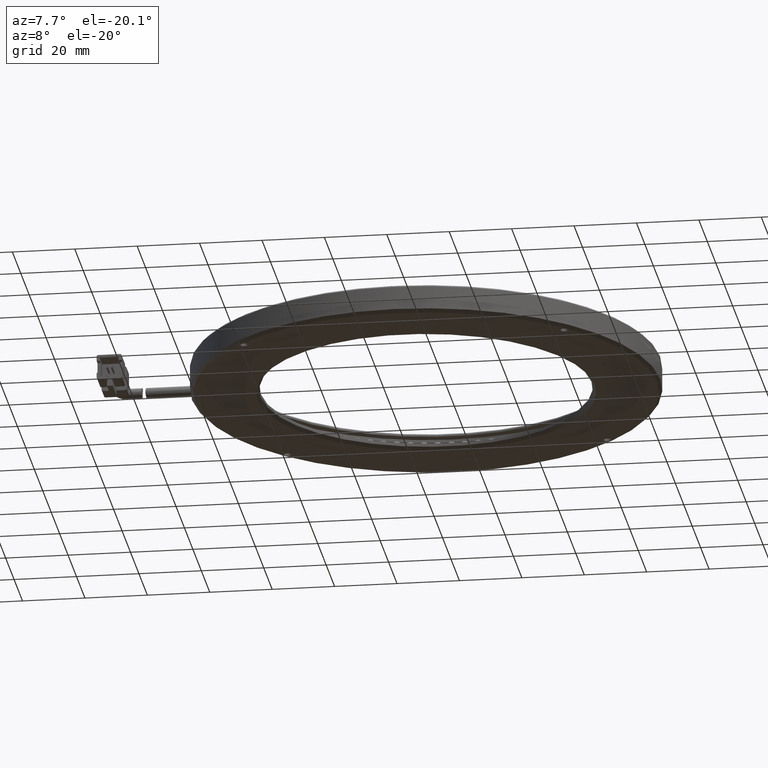
[diagram: clean part render]
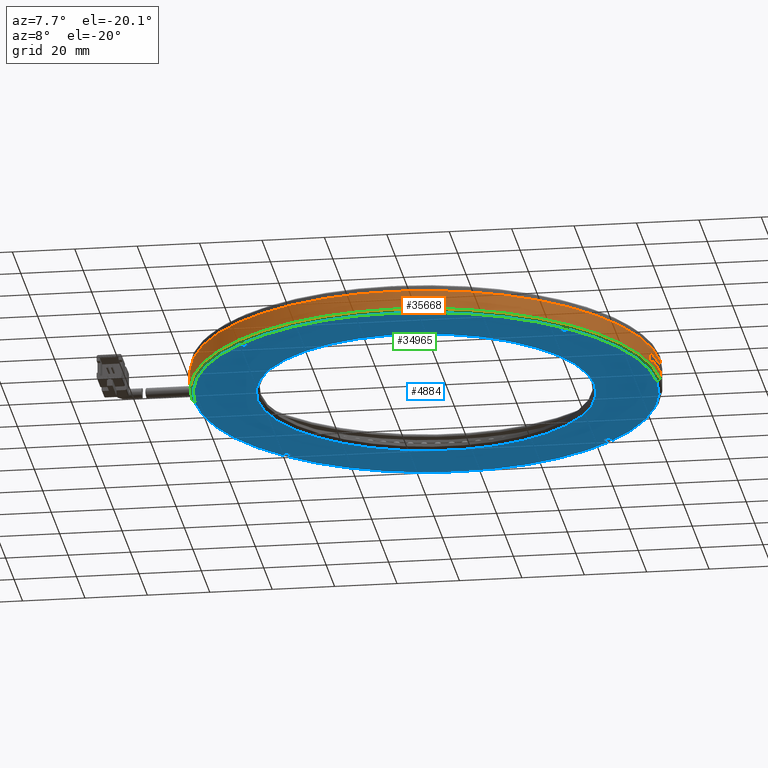
[diagram: same view with three faces highlighted in distinct colors, each labeled with its STEP entity id]
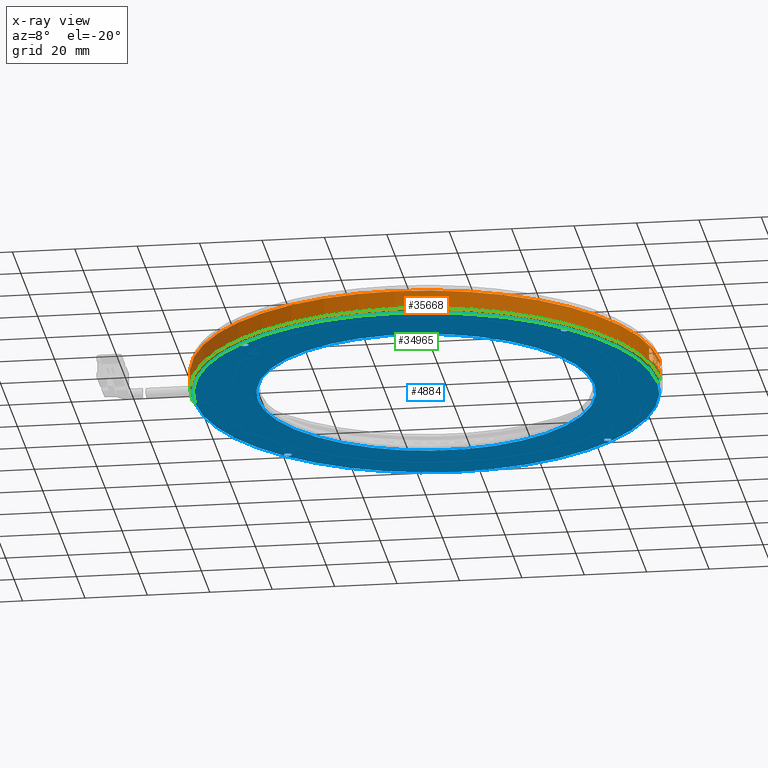
[diagram: x-ray of the same camera — body ghosted, the three highlighted faces saturated]
A machine part, auxiliary view with three faces highlighted in distinct colors.
The next image is the same camera in x-ray (body ghosted, the three faces saturated) — at least one of them is partly hidden behind the body in this view.
Their STEP definitions:

[orange] entity #35668 — the highlighted cylindrical surface (partial cylindrical patch) has radius 75 mm, axis along (-0, -0, -1).
#13 = CARTESIAN_POINT ( 'NONE',  ( 84.30572028820125800, -13.91079838607045500, -0.8683075398024623400 ) ) ;
#186 = VERTEX_POINT ( 'NONE', #46696 ) ;
#198 = CARTESIAN_POINT ( 'NONE',  ( 85.52988957885926900, -5.521928971155786800, -0.6067715644504890800 ) ) ;
#505 = ORIENTED_EDGE ( 'NONE', *, *, #43879, .T. ) ;
#578 = EDGE_CURVE ( 'NONE', #75198, #62875, #1296, .T. ) ;
#634 = ORIENTED_EDGE ( 'NONE', *, *, #50634, .T. ) ;
#738 = CARTESIAN_POINT ( 'NONE',  ( 85.77552405057097900, -1.555280779369136100, 0.6138250655971354600 ) ) ;
#948 = DIRECTION ( 'NONE',  ( -0.0000000000000000000, -6.878442475981133300E-015, 1.000000000000000000 ) ) ;
#1033 = CARTESIAN_POINT ( 'NONE',  ( 85.73372002254853900, -2.553757770800642000, -0.6550159446794713300 ) ) ;
#1047 = CARTESIAN_POINT ( 'NONE',  ( -64.17555533283173500, 0.5318895551031310700, 2.160573113875240600 ) ) ;
#1178 = EDGE_CURVE ( 'NONE', #19901, #24838, #72454, .T. ) ;
#1296 = CIRCLE ( 'NONE', #36454, 75.00000000000001400 ) ;
#1306 = CARTESIAN_POINT ( 'NONE',  ( -64.16110453020559100, -0.4776535156017542300, -0.2742379730084580900 ) ) ;
#1772 = CARTESIAN_POINT ( 'NONE',  ( 10.82239847715735200, 1.095939086294420100, 3.499999999999937400 ) ) ;
#2441 = CARTESIAN_POINT ( 'NONE',  ( 85.05263743725051000, -9.621973081681341400, 0.9598317408435508300 ) ) ;
#2538 = AXIS2_PLACEMENT_3D ( 'NONE', #68970, #32604, #75150 ) ;
#2626 = ORIENTED_EDGE ( 'NONE', *, *, #69928, .T. ) ;
#2639 = ORIENTED_EDGE ( 'NONE', *, *, #18367, .T. ) ;
#2771 = CARTESIAN_POINT ( 'NONE',  ( 85.82092045126417200, 0.6250869869910777900, 1.067313437690228000 ) ) ;
#3068 = ORIENTED_EDGE ( 'NONE', *, *, #22700, .T. ) ;
#3077 = CARTESIAN_POINT ( 'NONE',  ( 84.95984298114734700, -10.24598854607059900, 1.864478666339576500 ) ) ;
#3137 = CARTESIAN_POINT ( 'NONE',  ( 85.67987821670715200, -3.525799557230996100, -0.3505228873651366500 ) ) ;
#3162 = CARTESIAN_POINT ( 'NONE',  ( 85.19416152748284800, -8.591787798563524700, 1.557244951735952800 ) ) ;
#3170 = CARTESIAN_POINT ( 'NONE',  ( 85.10841785466354300, -9.228407172086837900, -0.4146928356259299600 ) ) ;
#3278 = CARTESIAN_POINT ( 'NONE',  ( 85.16052710156996900, -8.846474300600734300, -0.1782175950982712300 ) ) ;
#3394 = CARTESIAN_POINT ( 'NONE',  ( 85.30941573489741400, -7.661316503472243700, -0.4491446190207637500 ) ) ;
#3406 = DIRECTION ( 'NONE',  ( 6.395347214767827100E-014, 1.000000000000000000, 7.334989097588597200E-015 ) ) ;
#3833 = CARTESIAN_POINT ( 'NONE',  ( 10.82239847715735200, 1.095939086294420100, -2.500000000000089700 ) ) ;
#3854 = CARTESIAN_POINT ( 'NONE',  ( 85.52885474092244100, -5.533208846143681500, -0.009063415563392567000 ) ) ;
#3905 = B_SPLINE_CURVE_WITH_KNOTS ( 'NONE', 3,
 ( #9261, #15389, #39849, #3394, #45967, #9538, #52060, #15644, #58165, #21769 ),
 .UNSPECIFIED., .F., .F.,
 ( 4, 2, 2, 2, 4 ),
 ( 0.0000000000000000000, 0.0003139902522708175100, 0.0006279805045416350200, 0.0009419707568124525300, 0.001255961009083270000 ),
 .UNSPECIFIED. ) ;
#3913 = ORIENTED_EDGE ( 'NONE', *, *, #62850, .T. ) ;
#3942 = B_SPLINE_CURVE_WITH_KNOTS ( 'NONE', 3,
 ( #26353, #75055, #44740, #8292, #50813, #14409, #56885, #20518, #63051, #26601 ),
 .UNSPECIFIED., .F., .F.,
 ( 4, 2, 2, 2, 4 ),
 ( 0.0000000000000000000, 0.0001782810230367937400, 0.0003565620460735874800, 0.0005348430691103811700, 0.0007131240921471749700 ),
 .UNSPECIFIED. ) ;
#4053 = CARTESIAN_POINT ( 'NONE',  ( 84.91006955355624100, -10.56702886059692400, -1.122721883547756600 ) ) ;
#4149 = DIRECTION ( 'NONE',  ( -0.0000000000000000000, 7.496356896479893600E-015, -1.000000000000000000 ) ) ;
#4307 = EDGE_CURVE ( 'NONE', #52987, #69180, #12682, .T. ) ;
#4427 = B_SPLINE_CURVE_WITH_KNOTS ( 'NONE', 3,
 ( #39830, #76284, #52038, #15632, #58149, #21751, #64253, #27866, #70347, #33989, #76537, #40089 ),
 .UNSPECIFIED., .F., .F.,
 ( 4, 2, 2, 2, 2, 4 ),
 ( 0.0000000000000000000, 0.0004375022641152300500, 0.0008750045282304601100, 0.001093755660288075400, 0.001312506792345690500, 0.001750009056460921100 ),
 .UNSPECIFIED. ) ;
#4455 = CARTESIAN_POINT ( 'NONE',  ( 85.80041024745831600, -0.7200319962432520900, 3.499999999999922700 ) ) ;
#4896 = CIRCLE ( 'NONE', #54275, 75.00000000000001400 ) ;
#5469 = CARTESIAN_POINT ( 'NONE',  ( 85.47498599887585200, -6.114995638987085000, -0.3280353995191342400 ) ) ;
#5818 = CARTESIAN_POINT ( 'NONE',  ( 85.82009169457889200, 0.5018939382658461600, 0.5177462111873288900 ) ) ;
#5850 = CARTESIAN_POINT ( 'NONE',  ( 85.53146008865044800, -5.503766447297864200, 0.3114994842017965200 ) ) ;
#5897 = CARTESIAN_POINT ( 'NONE',  ( 85.65920072075071800, -3.849253282456294400, 0.9383610292177408900 ) ) ;
#5998 = CARTESIAN_POINT ( 'NONE',  ( 85.20767832337155300, -8.486865419715409000, 1.567313437690169600 ) ) ;
#6036 = ORIENTED_EDGE ( 'NONE', *, *, #25003, .T. ) ;
#6093 = CARTESIAN_POINT ( 'NONE',  ( 84.29269495348448500, -13.97441378550630400, -0.5977741702519245900 ) ) ;
#6309 = CARTESIAN_POINT ( 'NONE',  ( 85.49609889360229400, -5.894180615965486100, -0.6731427493094686000 ) ) ;
#6332 = EDGE_CURVE ( 'NONE', #27091, #62350, #17229, .T. ) ;
#6413 = ORIENTED_EDGE ( 'NONE', *, *, #57328, .T. ) ;
#6585 = AXIS2_PLACEMENT_3D ( 'NONE', #52904, #16477, #59022 ) ;
#6608 = CARTESIAN_POINT ( 'NONE',  ( 85.73373598826819400, -2.553444048851475600, 1.905696102290639800 ) ) ;
#6883 = CARTESIAN_POINT ( 'NONE',  ( 85.57562939020147000, -4.983079589536897600, 0.4626622748994564400 ) ) ;
#6938 = VECTOR ( 'NONE', #69389, 1000.000000000000000 ) ;
#7142 = CARTESIAN_POINT ( 'NONE',  ( -64.17254035220457800, 0.2194706166854303600, 2.019005894296307200 ) ) ;
#7179 = DIRECTION ( 'NONE',  ( 0.0000000000000000000, 0.0000000000000000000, 1.000000000000000000 ) ) ;
#7219 = VERTEX_POINT ( 'NONE', #68206 ) ;
#7418 = CARTESIAN_POINT ( 'NONE',  ( -64.16470531755148000, -0.2962797748858557700, -0.5664088657553876200 ) ) ;
#7427 = EDGE_CURVE ( 'NONE', #15309, #69537, #74086, .T. ) ;
#7877 = DIRECTION ( 'NONE',  ( -1.000000000000000000, 0.0000000000000000000, 0.0000000000000000000 ) ) ;
#8292 = CARTESIAN_POINT ( 'NONE',  ( 85.24289478151826000, -8.209602805405863200, -0.2974314772622673200 ) ) ;
#8489 = B_SPLINE_CURVE_WITH_KNOTS ( 'NONE', 3,
 ( #23580, #53869, #11371, #29719, #72173, #35842, #78350, #41932, #5469, #48009 ),
 .UNSPECIFIED., .F., .F.,
 ( 4, 2, 2, 2, 4 ),
 ( 0.0000000000000000000, 0.0002371364285329265300, 0.0004742728570658530500, 0.0007114092855987795200, 0.0009485457141317061000 ),
 .UNSPECIFIED. ) ;
#8514 = LINE ( 'NONE', #63839, #22810 ) ;
#8575 = CARTESIAN_POINT ( 'NONE',  ( 85.07569638435559500, -9.461484461295524900, 1.420367464178278900 ) ) ;
#8695 = VERTEX_POINT ( 'NONE', #10469 ) ;
#8755 = EDGE_CURVE ( 'NONE', #16755, #52987, #53532, .T. ) ;
#8815 = DIRECTION ( 'NONE',  ( -0.0000000000000000000, -0.0000000000000000000, -1.000000000000000000 ) ) ;
#8887 = CARTESIAN_POINT ( 'NONE',  ( 85.27948513028692900, -7.911960065469779500, 3.499999999999862800 ) ) ;
#8970 = AXIS2_PLACEMENT_3D ( 'NONE', #58025, #21623, #64128 ) ;
#9149 = CARTESIAN_POINT ( 'NONE',  ( 85.42991686564674600, -6.566841082235678900, 0.3114994842017878600 ) ) ;
#9150 = CARTESIAN_POINT ( 'NONE',  ( 85.12242608258272000, -9.126873532208833200, 0.6254529725738690000 ) ) ;
#9201 = EDGE_LOOP ( 'NONE', ( #78678, #19727, #41827, #41777, #9497, #58721, #16939, #60508, #634, #25318 ) ) ;
#9261 = CARTESIAN_POINT ( 'NONE',  ( 85.33692191335711600, -7.423790784777581000, -0.1071051669609968100 ) ) ;
#9269 = CARTESIAN_POINT ( 'NONE',  ( 85.66534271860787400, -3.755434787991481600, -0.01854273503215161200 ) ) ;
#9279 = CARTESIAN_POINT ( 'NONE',  ( 85.33692191335711600, -7.423790784777601500, 3.499999999999873400 ) ) ;
#9280 = EDGE_CURVE ( 'NONE', #55651, #50403, #21757, .T. ) ;
#9312 = CARTESIAN_POINT ( 'NONE',  ( 85.08439717377525800, -9.399704403628820900, -0.2336877264247555500 ) ) ;
#9412 = CARTESIAN_POINT ( 'NONE',  ( 84.85266122199919900, -10.92571628764155800, -1.184191727585514300 ) ) ;
#9425 = CARTESIAN_POINT ( 'NONE',  ( 85.19931252816553500, -8.552204532308735500, -0.3183354626710876400 ) ) ;
#9488 = CARTESIAN_POINT ( 'NONE',  ( 84.29269495348449900, -13.97441378550632900, 3.499999999999843700 ) ) ;
#9497 = ORIENTED_EDGE ( 'NONE', *, *, #23116, .T. ) ;
#9538 = CARTESIAN_POINT ( 'NONE',  ( 85.27631918593773700, -7.938593403644053300, -0.5961601809679753000 ) ) ;
#9694 = VECTOR ( 'NONE', #26948, 1000.000000000000000 ) ;
#9799 = CIRCLE ( 'NONE', #53440, 75.00000000000001400 ) ;
#9975 = DIRECTION ( 'NONE',  ( 1.000000000000000000, 0.0000000000000000000, 0.0000000000000000000 ) ) ;
#9998 = CARTESIAN_POINT ( 'NONE',  ( 85.53169343704439600, -5.501124929513296500, 0.2304433328410902800 ) ) ;
#10225 = CARTESIAN_POINT ( 'NONE',  ( 84.86755676487376800, -10.83398840837440100, -1.184191727585524700 ) ) ;
#10469 = CARTESIAN_POINT ( 'NONE',  ( 85.53146008865044800, -5.503766447297857100, 1.881266926062233200 ) ) ;
#10623 = DIRECTION ( 'NONE',  ( -0.0000000000000000000, -0.0000000000000000000, -1.000000000000000000 ) ) ;
#10773 = EDGE_CURVE ( 'NONE', #21242, #27091, #65553, .T. ) ;
#10799 = FACE_BOUND ( 'NONE', #32205, .T. ) ;
#10960 = CARTESIAN_POINT ( 'NONE',  ( 84.88190146822539400, -10.74457610723387700, 2.535218796744831400 ) ) ;
#11127 = B_SPLINE_CURVE_WITH_KNOTS ( 'NONE', 3,
 ( #45756, #3162, #15428, #57937, #21528, #64048, #27648, #70135, #33785, #76339 ),
 .UNSPECIFIED., .F., .F.,
 ( 4, 2, 2, 2, 4 ),
 ( 0.0000000000000000000, 0.0003154149640528861600, 0.0006308299281057723200, 0.0009462448921586583100, 0.001261659856211544900 ),
 .UNSPECIFIED. ) ;
#11236 = CARTESIAN_POINT ( 'NONE',  ( 85.12242608258272000, -9.126873532208833200, 0.6254529725738690000 ) ) ;
#11371 = CARTESIAN_POINT ( 'NONE',  ( 85.43051494153681300, -6.561034165409383300, 0.1528975038893688700 ) ) ;
#11466 = LINE ( 'NONE', #37516, #25692 ) ;
#11695 = CARTESIAN_POINT ( 'NONE',  ( 85.72546453779142400, -2.715975749623410700, -0.6652447018447252800 ) ) ;
#11720 = ORIENTED_EDGE ( 'NONE', *, *, #47036, .T. ) ;
#11809 = VERTEX_POINT ( 'NONE', #22440 ) ;
#11874 = CARTESIAN_POINT ( 'NONE',  ( 85.26948117695646100, -7.994285381719944200, 1.239085275425815000 ) ) ;
#11967 = CARTESIAN_POINT ( 'NONE',  ( 85.81747569817115100, 0.2295187789606885400, 0.3124709381981453600 ) ) ;
#11989 = CARTESIAN_POINT ( 'NONE',  ( 84.41105198197999500, -13.38572837421566500, -1.184191727585528900 ) ) ;
#12042 = CARTESIAN_POINT ( 'NONE',  ( 85.66489476889145700, -3.762316406412186800, 1.249962106869142400 ) ) ;
#12359 = EDGE_CURVE ( 'NONE', #16978, #63618, #21245, .T. ) ;
#12682 = LINE ( 'NONE', #21319, #28827 ) ;
#12728 = FACE_OUTER_BOUND ( 'NONE', #9201, .T. ) ;
#12750 = CARTESIAN_POINT ( 'NONE',  ( 85.74124534837859800, -2.395341320583357400, 1.875817294594115600 ) ) ;
#12871 = LINE ( 'NONE', #37925, #29026 ) ;
#12937 = VERTEX_POINT ( 'NONE', #55436 ) ;
#13035 = CARTESIAN_POINT ( 'NONE',  ( 85.77526680104402600, -1.562553528169331200, 0.4522941997876001600 ) ) ;
#13305 = CARTESIAN_POINT ( 'NONE',  ( -64.16872406090021700, -0.06080507990462901600, 1.818132394840992000 ) ) ;
#13555 = CARTESIAN_POINT ( 'NONE',  ( -64.16872510365769200, -0.06079972831420470100, -0.8182535258995933300 ) ) ;
#13940 = EDGE_CURVE ( 'NONE', #71904, #47499, #41262, .T. ) ;
#14409 = CARTESIAN_POINT ( 'NONE',  ( 85.26185691283078000, -8.056625508758743900, -0.2035324040654813400 ) ) ;
#14690 = CARTESIAN_POINT ( 'NONE',  ( 85.12473126071773800, -9.111231115412950400, 1.762478863472281700 ) ) ;
#14739 = EDGE_LOOP ( 'NONE', ( #27403, #53725, #3068, #41545, #43441, #63085, #47403 ) ) ;
#14763 = CARTESIAN_POINT ( 'NONE',  ( 85.81452051643229600, 0.003462004368111055800, 1.871382238639489400 ) ) ;
#14789 = EDGE_CURVE ( 'NONE', #53853, #54915, #64517, .T. ) ;
#14813 = ORIENTED_EDGE ( 'NONE', *, *, #55368, .T. ) ;
#15309 = VERTEX_POINT ( 'NONE', #65081 ) ;
#15337 = DIRECTION ( 'NONE',  ( 0.0000000000000000000, 0.0000000000000000000, 1.000000000000000000 ) ) ;
#15354 = EDGE_CURVE ( 'NONE', #68731, #78454, #55758, .T. ) ;
#15389 = CARTESIAN_POINT ( 'NONE',  ( 85.33253263712718700, -7.462179892349508000, -0.2057944000650614200 ) ) ;
#15396 = CARTESIAN_POINT ( 'NONE',  ( 85.65785339892083500, -3.869414831915348500, 0.4517633133040237500 ) ) ;
#15428 = CARTESIAN_POINT ( 'NONE',  ( 85.18061900130737700, -8.695015394712157800, 1.526415576407719400 ) ) ;
#15438 = DIRECTION ( 'NONE',  ( -0.0000000000000000000, -4.393728343770856900E-015, 1.000000000000000000 ) ) ;
#15443 = CARTESIAN_POINT ( 'NONE',  ( 85.06699240344293900, -9.522052103183044700, -0.01496078912786971500 ) ) ;
#15632 = CARTESIAN_POINT ( 'NONE',  ( 85.42453137435430200, -6.620397456124025300, -0.5796897372242287800 ) ) ;
#15644 = CARTESIAN_POINT ( 'NONE',  ( 85.23841324515552700, -8.245769452809797800, -0.6585474943089378900 ) ) ;
#15658 = DIRECTION ( 'NONE',  ( -0.0000000000000000000, -0.0000000000000000000, -1.000000000000000000 ) ) ;
#15688 = VERTEX_POINT ( 'NONE', #3077 ) ;
#15697 = CARTESIAN_POINT ( 'NONE',  ( 85.21186890710215800, -8.454280238536300700, -0.6652447018447669200 ) ) ;
#15737 = CARTESIAN_POINT ( 'NONE',  ( 85.22257479628089500, -8.371233476541830100, 1.916150646992459000 ) ) ;
#15770 = CARTESIAN_POINT ( 'NONE',  ( 85.80041024745831600, -0.7200319962432193400, -0.6187330739377393500 ) ) ;
#15908 = EDGE_CURVE ( 'NONE', #69180, #60776, #8489, .T. ) ;
#16158 = CIRCLE ( 'NONE', #8970, 75.00000000000001400 ) ;
#16477 = DIRECTION ( 'NONE',  ( -0.0000000000000000000, 6.952995436024276700E-015, -1.000000000000000000 ) ) ;
#16525 = AXIS2_PLACEMENT_3D ( 'NONE', #18351, #48387, #48905 ) ;
#16755 = VERTEX_POINT ( 'NONE', #65643 ) ;
#16767 = CARTESIAN_POINT ( 'NONE',  ( -64.17760152284266400, 1.095939086294420100, 3.499999999999937400 ) ) ;
#16939 = ORIENTED_EDGE ( 'NONE', *, *, #35731, .F. ) ;
#16978 = VERTEX_POINT ( 'NONE', #19685 ) ;
#17023 = CARTESIAN_POINT ( 'NONE',  ( 84.29501102964029300, -13.96314201506691300, 1.928587409456829800 ) ) ;
#17077 = CARTESIAN_POINT ( 'NONE',  ( 84.92277574582111300, -10.48587833668098700, 2.439866892567510400 ) ) ;
#17229 = B_SPLINE_CURVE_WITH_KNOTS ( 'NONE', 3,
 ( #58265, #15737, #27718, #21878, #64369, #27980, #70468, #34110, #76661, #40205 ),
 .UNSPECIFIED., .F., .F.,
 ( 4, 2, 2, 2, 4 ),
 ( 0.0000000000000000000, 0.0003458487983892964100, 0.0006916975967785928100, 0.001037546395167893500, 0.001383395193557194300 ),
 .UNSPECIFIED. ) ;
#17295 = CARTESIAN_POINT ( 'NONE',  ( 84.29269495348449900, -13.97441378550630400, 1.728539909830033600 ) ) ;
#17361 = DIRECTION ( 'NONE',  ( -0.0000000000000000000, -6.663212063528497600E-015, 1.000000000000000000 ) ) ;
#18063 = CARTESIAN_POINT ( 'NONE',  ( 85.81284302531462100, -0.1066866181680018900, 0.2502727656581910100 ) ) ;
#18136 = CARTESIAN_POINT ( 'NONE',  ( 85.68234505687151200, -3.486537606137698000, 1.659290943583005000 ) ) ;
#18283 = CARTESIAN_POINT ( 'NONE',  ( 85.57179529669907900, -5.030065722768964200, -0.06460596567063313400 ) ) ;
#18351 = CARTESIAN_POINT ( 'NONE',  ( 10.82239847715735200, 1.095939086294420100, 3.499999999999937400 ) ) ;
#18367 = EDGE_CURVE ( 'NONE', #41456, #15688, #49677, .T. ) ;
#18653 = VECTOR ( 'NONE', #26956, 1000.000000000000000 ) ;
#18840 = CARTESIAN_POINT ( 'NONE',  ( 85.75436211822997700, -2.098600255447479000, 1.740395111934716300 ) ) ;
#18980 = EDGE_CURVE ( 'NONE', #60528, #35159, #47796, .T. ) ;
#19146 = CARTESIAN_POINT ( 'NONE',  ( 85.77552405057097900, -1.555280779369136100, 0.6138250655971354600 ) ) ;
#19225 = CARTESIAN_POINT ( 'NONE',  ( -64.17760152284266400, 1.095939086294420100, 3.499999999999937400 ) ) ;
#19353 = CYLINDRICAL_SURFACE ( 'NONE', #16525, 75.00000000000001400 ) ;
#19407 = CARTESIAN_POINT ( 'NONE',  ( -64.16205956965423200, -0.4333336209045649000, 1.380780430086843100 ) ) ;
#19608 = CARTESIAN_POINT ( 'NONE',  ( -64.17760152284266400, 1.095939086294413800, 2.249999999999931600 ) ) ;
#19666 = CARTESIAN_POINT ( 'NONE',  ( -64.17251315748760000, 0.2171883964074632600, -1.017659390864424500 ) ) ;
#19685 = CARTESIAN_POINT ( 'NONE',  ( 85.81083458653341700, -0.2210460578981488500, 0.2533599493180718800 ) ) ;
#19727 = ORIENTED_EDGE ( 'NONE', *, *, #73222, .F. ) ;
#19890 = CARTESIAN_POINT ( 'NONE',  ( 85.82239847715736400, 1.095939086294429400, 3.499999999999937400 ) ) ;
#19901 = VERTEX_POINT ( 'NONE', #41935 ) ;
#20097 = VECTOR ( 'NONE', #10623, 1000.000000000000000 ) ;
#20126 = CARTESIAN_POINT ( 'NONE',  ( 85.82239847715736400, 1.095939086294429400, 3.499999999999937400 ) ) ;
#20518 = CARTESIAN_POINT ( 'NONE',  ( 85.27459270946997100, -7.952365034927896500, -0.05689357070261075900 ) ) ;
#20553 = ORIENTED_EDGE ( 'NONE', *, *, #8755, .T. ) ;
#20802 = CARTESIAN_POINT ( 'NONE',  ( 85.18674703587593900, -8.649341830136611600, 1.907672206481323900 ) ) ;
#21226 = ORIENTED_EDGE ( 'NONE', *, *, #1178, .T. ) ;
#21242 = VERTEX_POINT ( 'NONE', #58686 ) ;
#21245 = CIRCLE ( 'NONE', #6585, 75.00000000000001400 ) ;
#21281 = CARTESIAN_POINT ( 'NONE',  ( 85.21186890710215800, -8.454280238536300700, -0.6652447018447669200 ) ) ;
#21319 = CARTESIAN_POINT ( 'NONE',  ( 85.42991686564674600, -6.566841082235686000, 3.499999999999903200 ) ) ;
#21340 = CARTESIAN_POINT ( 'NONE',  ( 10.82239847715735200, 1.095939086294420100, -0.6187330739377393500 ) ) ;
#21382 = CARTESIAN_POINT ( 'NONE',  ( 85.12297169955056100, -9.122907954702485600, 0.5163563527657207800 ) ) ;
#21401 = EDGE_CURVE ( 'NONE', #186, #11809, #69570, .T. ) ;
#21423 = CARTESIAN_POINT ( 'NONE',  ( 85.33567663962094200, -7.434675046540792000, 1.183592507457587000 ) ) ;
#21457 = CARTESIAN_POINT ( 'NONE',  ( 85.78632831542179800, -1.229834592241102500, 1.881266926062262800 ) ) ;
#21528 = CARTESIAN_POINT ( 'NONE',  ( 85.14791711066617100, -8.939988822093360100, 1.330703662300897200 ) ) ;
#21543 = CARTESIAN_POINT ( 'NONE',  ( 85.05275188062370300, -9.621188867116954300, 0.3023244666287270300 ) ) ;
#21623 = DIRECTION ( 'NONE',  ( -0.0000000000000000000, 6.397414524221615100E-015, -1.000000000000000000 ) ) ;
#21751 = CARTESIAN_POINT ( 'NONE',  ( 85.39458545245200600, -6.903522228967770700, -0.3402015570328510400 ) ) ;
#21757 = B_SPLINE_CURVE_WITH_KNOTS ( 'NONE', 3,
 ( #57254, #69229, #14763, #63398, #26969, #69505, #33122, #75675, #39209, #2771 ),
 .UNSPECIFIED., .F., .F.,
 ( 4, 2, 2, 2, 4 ),
 ( 9.467388459876324600E-019, 0.0003357147060556749000, 0.0006714294121113489200, 0.001007144118167022800, 0.001342858824222696800 ),
 .UNSPECIFIED. ) ;
#21769 = CARTESIAN_POINT ( 'NONE',  ( 85.21186890710215800, -8.454280238536300700, -0.6652447018447669200 ) ) ;
#21878 = CARTESIAN_POINT ( 'NONE',  ( 85.26470795163697900, -8.033968266299153200, 1.850686915253267000 ) ) ;
#21901 = AXIS2_PLACEMENT_3D ( 'NONE', #1772, #44304, #7877 ) ;
#21974 = CARTESIAN_POINT ( 'NONE',  ( 85.48259465488460800, -6.035337566821808300, -0.3280353995191321300 ) ) ;
#21975 = EDGE_CURVE ( 'NONE', #62350, #36643, #16158, .T. ) ;
#22190 = CARTESIAN_POINT ( 'NONE',  ( 84.95984298114733200, -10.24598854607058700, -0.5969663664213044100 ) ) ;
#22196 = CARTESIAN_POINT ( 'NONE',  ( 85.27158828524589800, -7.976995219607230700, 1.183592507457587000 ) ) ;
#22298 = B_SPLINE_CURVE_WITH_KNOTS ( 'NONE', 3,
 ( #9150, #21382, #69987, #33644, #76194, #39738, #3278, #45862, #9425, #51943 ),
 .UNSPECIFIED., .F., .F.,
 ( 4, 2, 2, 2, 4 ),
 ( 0.0000000000000000000, 0.0003250031973688801700, 0.0006500063947377603400, 0.0009750095921066404000, 0.001300012789475520500 ),
 .UNSPECIFIED. ) ;
#22440 = CARTESIAN_POINT ( 'NONE',  ( 85.19220925897089100, -8.606186674447533500, 0.8231273911785044200 ) ) ;
#22521 = AXIS2_PLACEMENT_3D ( 'NONE', #69003, #32643, #75187 ) ;
#22700 = EDGE_CURVE ( 'NONE', #50403, #16978, #71656, .T. ) ;
#22810 = VECTOR ( 'NONE', #69905, 1000.000000000000000 ) ;
#22898 = DIRECTION ( 'NONE',  ( -0.0000000000000000000, -0.0000000000000000000, -1.000000000000000000 ) ) ;
#23116 = EDGE_CURVE ( 'NONE', #36323, #69537, #76588, .T. ) ;
#23182 = CARTESIAN_POINT ( 'NONE',  ( 84.95016295373170600, -10.30911521007655700, 2.227213787587071000 ) ) ;
#23293 = VECTOR ( 'NONE', #15337, 1000.000000000000000 ) ;
#23406 = CARTESIAN_POINT ( 'NONE',  ( 84.31418315784573300, -13.86939789488607900, 2.215213328318723200 ) ) ;
#23462 = CIRCLE ( 'NONE', #2538, 75.00000000000001400 ) ;
#23580 = CARTESIAN_POINT ( 'NONE',  ( 85.42991686564674600, -6.566841082235678900, 0.3114994842017878600 ) ) ;
#23866 = CARTESIAN_POINT ( 'NONE',  ( 85.19220925897089100, -8.606186674447533500, 3.499999999999937400 ) ) ;
#24241 = CARTESIAN_POINT ( 'NONE',  ( 85.70818146017229800, -3.044437054332092000, 1.881823360458909900 ) ) ;
#24398 = CARTESIAN_POINT ( 'NONE',  ( 85.56465721234128800, -5.116611009459464100, -0.2757891982449460800 ) ) ;
#24517 = ORIENTED_EDGE ( 'NONE', *, *, #72751, .T. ) ;
#24668 = VERTEX_POINT ( 'NONE', #76100 ) ;
#24680 = EDGE_CURVE ( 'NONE', #78454, #41456, #30503, .T. ) ;
#24838 = VERTEX_POINT ( 'NONE', #35144 ) ;
#24899 = VERTEX_POINT ( 'NONE', #66143 ) ;
#24938 = CARTESIAN_POINT ( 'NONE',  ( 85.76222622608440800, -1.908201801509803700, 1.587087957760302500 ) ) ;
#25003 = EDGE_CURVE ( 'NONE', #71338, #40525, #65017, .T. ) ;
#25222 = CARTESIAN_POINT ( 'NONE',  ( 85.77122898921751900, -1.674415012901318000, -0.01304883365896653500 ) ) ;
#25318 = ORIENTED_EDGE ( 'NONE', *, *, #69063, .T. ) ;
#25484 = CARTESIAN_POINT ( 'NONE',  ( -64.15718569520917900, -0.6539058676754254700, 0.7294260676648236500 ) ) ;
#25558 = ORIENTED_EDGE ( 'NONE', *, *, #56730, .T. ) ;
#25667 = LINE ( 'NONE', #9279, #72243 ) ;
#25692 = VECTOR ( 'NONE', #7179, 1000.000000000000000 ) ;
#25758 = CARTESIAN_POINT ( 'NONE',  ( -64.17649974751834900, 0.6374368434604580400, -1.204396376914511200 ) ) ;
#26183 = EDGE_CURVE ( 'NONE', #62875, #70243, #53551, .T. ) ;
#26212 = DIRECTION ( 'NONE',  ( -0.0000000000000000000, -0.0000000000000000000, -1.000000000000000000 ) ) ;
#26353 = CARTESIAN_POINT ( 'NONE',  ( 85.21325676467438400, -8.443463580883504300, -0.3280353995191529500 ) ) ;
#26601 = CARTESIAN_POINT ( 'NONE',  ( 85.27948513028692900, -7.911960065469779500, 0.05568553071344170500 ) ) ;
#26856 = CARTESIAN_POINT ( 'NONE',  ( 85.78632831542179800, -1.229834592241113800, 3.499999999999921000 ) ) ;
#26913 = FACE_BOUND ( 'NONE', #14739, .T. ) ;
#26948 = DIRECTION ( 'NONE',  ( 0.0000000000000000000, 0.0000000000000000000, 1.000000000000000000 ) ) ;
#26956 = DIRECTION ( 'NONE',  ( -0.0000000000000000000, -0.0000000000000000000, -1.000000000000000000 ) ) ;
#26969 = CARTESIAN_POINT ( 'NONE',  ( 85.81850172725121700, 0.3269745239991234100, 1.762523851468778900 ) ) ;
#27091 = VERTEX_POINT ( 'NONE', #28535 ) ;
#27403 = ORIENTED_EDGE ( 'NONE', *, *, #62641, .T. ) ;
#27445 = DIRECTION ( 'NONE',  ( 1.000000000000000000, 0.0000000000000000000, 0.0000000000000000000 ) ) ;
#27648 = CARTESIAN_POINT ( 'NONE',  ( 85.13005955917174100, -9.071260427913030000, 1.043470415415879100 ) ) ;
#27656 = CARTESIAN_POINT ( 'NONE',  ( 85.04892486094765000, -9.647560389969577000, 0.6370808795505972200 ) ) ;
#27718 = CARTESIAN_POINT ( 'NONE',  ( 85.23699226966734000, -8.257182256704897600, 1.905356559001218300 ) ) ;
#27866 = CARTESIAN_POINT ( 'NONE',  ( 85.38322206209761600, -7.008665935357462300, -0.1439643141347585200 ) ) ;
#27892 = CARTESIAN_POINT ( 'NONE',  ( 85.78632831542179800, -1.229834592241113800, -0.6187330739377398000 ) ) ;
#27980 = CARTESIAN_POINT ( 'NONE',  ( 85.30094370956017300, -7.733310517213367600, 1.676917082473078800 ) ) ;
#28294 = CARTESIAN_POINT ( 'NONE',  ( 84.95843221003126200, -10.25523750806775400, -0.6879549994374354300 ) ) ;
#28451 = EDGE_CURVE ( 'NONE', #24668, #16755, #12871, .T. ) ;
#28493 = CARTESIAN_POINT ( 'NONE',  ( 84.95984298114734700, -10.24598854607058800, -0.5044299926477303600 ) ) ;
#28496 = VERTEX_POINT ( 'NONE', #68941 ) ;
#28535 = CARTESIAN_POINT ( 'NONE',  ( 85.20767832337155300, -8.486865419715409000, 1.916150646992458100 ) ) ;
#28827 = VECTOR ( 'NONE', #8815, 1000.000000000000000 ) ;
#29026 = VECTOR ( 'NONE', #50113, 1000.000000000000000 ) ;
#29332 = CARTESIAN_POINT ( 'NONE',  ( 84.95984298114733200, -10.24598854607058700, 1.957463866549426400 ) ) ;
#29561 = CARTESIAN_POINT ( 'NONE',  ( 84.35424791183868400, -13.67143568384262400, 2.441667129815850800 ) ) ;
#29719 = CARTESIAN_POINT ( 'NONE',  ( 85.43393475002699200, -6.527638600197391000, -0.002216981304178547600 ) ) ;
#30234 = CARTESIAN_POINT ( 'NONE',  ( 85.26674209899272200, -8.016724362916456000, 1.292006070775892000 ) ) ;
#30350 = CARTESIAN_POINT ( 'NONE',  ( 84.35874188064180100, -13.64902759739554300, -1.124537473633009200 ) ) ;
#30411 = CARTESIAN_POINT ( 'NONE',  ( 85.72546453779141000, -2.715975749623428500, 1.916150646992497800 ) ) ;
#30477 = EDGE_CURVE ( 'NONE', #74000, #21242, #40626, .T. ) ;
#30503 = CIRCLE ( 'NONE', #37084, 75.00000000000001400 ) ;
#30560 = CARTESIAN_POINT ( 'NONE',  ( 85.55274315281698700, -5.258438452650359800, -0.4538705885491131100 ) ) ;
#30940 = ORIENTED_EDGE ( 'NONE', *, *, #56168, .T. ) ;
#31091 = CARTESIAN_POINT ( 'NONE',  ( 85.77093401188852800, -1.682404599520654700, 1.248857339273203200 ) ) ;
#31237 = VECTOR ( 'NONE', #38884, 1000.000000000000000 ) ;
#31339 = CARTESIAN_POINT ( 'NONE',  ( 10.82239847715735200, 1.095939086294420100, 1.881266926062277400 ) ) ;
#31372 = ORIENTED_EDGE ( 'NONE', *, *, #69160, .T. ) ;
#31394 = CARTESIAN_POINT ( 'NONE',  ( 85.76032910615960200, -1.956538486376427200, -0.4103181488990444400 ) ) ;
#31404 = CARTESIAN_POINT ( 'NONE',  ( -64.17760152284267900, 0.9803321335664875200, 2.249999999999931200 ) ) ;
#31665 = CARTESIAN_POINT ( 'NONE',  ( -64.15744734107639100, -0.6428014209420458400, 0.2711516273051495800 ) ) ;
#31910 = CARTESIAN_POINT ( 'NONE',  ( -64.17760152284266400, 1.095939086294420100, -1.250000000000064400 ) ) ;
#32162 = EDGE_CURVE ( 'NONE', #45796, #75436, #73406, .T. ) ;
#32205 = EDGE_LOOP ( 'NONE', ( #54703, #42378, #36920, #33163, #44548, #505, #6413, #34647, #21226, #62231, #66209, #11720, #40021, #40356 ) ) ;
#32311 = EDGE_CURVE ( 'NONE', #75319, #55798, #35077, .T. ) ;
#32417 = CARTESIAN_POINT ( 'NONE',  ( 85.82239847715736400, 1.095939086294429400, 1.532429716759989600 ) ) ;
#32600 = EDGE_CURVE ( 'NONE', #64083, #48320, #25667, .T. ) ;
#32604 = DIRECTION ( 'NONE',  ( -0.0000000000000000000, -7.575289211764191400E-015, 1.000000000000000000 ) ) ;
#32643 = DIRECTION ( 'NONE',  ( -0.0000000000000000000, 7.322880572951427900E-015, -1.000000000000000000 ) ) ;
#32788 = CARTESIAN_POINT ( 'NONE',  ( 85.82207191044074100, 0.8746137582187538700, 3.499999999999936100 ) ) ;
#33116 = LINE ( 'NONE', #32788, #31237 ) ;
#33122 = CARTESIAN_POINT ( 'NONE',  ( 85.82042044250782500, 0.5502298031242169900, 1.509774047811696100 ) ) ;
#33163 = ORIENTED_EDGE ( 'NONE', *, *, #21975, .T. ) ;
#33396 = CARTESIAN_POINT ( 'NONE',  ( 85.57562939020147000, -4.983079589536897600, 3.499999999999922300 ) ) ;
#33503 = CARTESIAN_POINT ( 'NONE',  ( 85.69573988204149400, -3.261635341824229400, -0.5359464341565410800 ) ) ;
#33541 = CARTESIAN_POINT ( 'NONE',  ( 85.16901157135396300, -8.783628806125227200, -0.6332506229390032500 ) ) ;
#33644 = CARTESIAN_POINT ( 'NONE',  ( 85.13066680191610700, -9.066825319815258400, 0.1962860136212993000 ) ) ;
#33785 = CARTESIAN_POINT ( 'NONE',  ( 85.12296165571400800, -9.122980953921041800, 0.7311104013008200600 ) ) ;
#33989 = CARTESIAN_POINT ( 'NONE',  ( 85.37507307409551100, -7.083296352040183500, 0.1429601722950245000 ) ) ;
#34110 = CARTESIAN_POINT ( 'NONE',  ( 85.32595410380287100, -7.519429498712943500, 1.400999174912653100 ) ) ;
#34211 = CARTESIAN_POINT ( 'NONE',  ( 85.51200381032960300, -5.720854192778759300, -0.2705481974477274000 ) ) ;
#34408 = CARTESIAN_POINT ( 'NONE',  ( 84.95036088790753600, -10.30782768388354700, -0.8642259528725037000 ) ) ;
#34490 = VERTEX_POINT ( 'NONE', #47514 ) ;
#34644 = DIRECTION ( 'NONE',  ( -0.0000000000000000000, 6.757381405368177900E-015, -1.000000000000000000 ) ) ;
#34647 = ORIENTED_EDGE ( 'NONE', *, *, #73902, .T. ) ;
#34885 = CARTESIAN_POINT ( 'NONE',  ( 85.33692191335711600, -7.423790784777601500, 0.8231273911785130800 ) ) ;
#35077 = B_SPLINE_CURVE_WITH_KNOTS ( 'NONE', 3,
 ( #48432, #42331, #5897, #12042, #54534, #18136, #60672, #24241, #66713, #30411 ),
 .UNSPECIFIED., .F., .F.,
 ( 4, 2, 2, 2, 4 ),
 ( 0.0000000000000000000, 0.0004844807903377913300, 0.0009689615806755822200, 0.001453442371013373300, 0.001937923161351164400 ),
 .UNSPECIFIED. ) ;
#35144 = CARTESIAN_POINT ( 'NONE',  ( 85.27948513028692900, -7.911960065469755500, 0.4742901818761657300 ) ) ;
#35159 = VERTEX_POINT ( 'NONE', #53785 ) ;
#35660 = CARTESIAN_POINT ( 'NONE',  ( 84.40943374070201300, -13.39400553555405800, 2.544233606038091500 ) ) ;
#35668 = ADVANCED_FACE ( 'NONE', ( #12728, #26913, #75491, #43144, #59311, #10799 ), #19353, .T. ) ;
#35731 = EDGE_CURVE ( 'NONE', #45796, #15309, #65889, .T. ) ;
#35747 = ORIENTED_EDGE ( 'NONE', *, *, #28451, .T. ) ;
#35842 = CARTESIAN_POINT ( 'NONE',  ( 85.44621335189216900, -6.406622087925933700, -0.2082778614684262200 ) ) ;
#36058 = CARTESIAN_POINT ( 'NONE',  ( 85.72546453779141000, -2.715975749623428500, 1.916150646992497800 ) ) ;
#36077 = EDGE_CURVE ( 'NONE', #24838, #186, #4896, .T. ) ;
#36323 = VERTEX_POINT ( 'NONE', #61333 ) ;
#36354 = CARTESIAN_POINT ( 'NONE',  ( 85.25455097473374600, -8.115836807359787700, 1.434460720313240500 ) ) ;
#36454 = AXIS2_PLACEMENT_3D ( 'NONE', #21340, #63868, #27445 ) ;
#36466 = CARTESIAN_POINT ( 'NONE',  ( 84.31510130916287000, -13.86491446348446600, -0.9517729592677090000 ) ) ;
#36503 = AXIS2_PLACEMENT_3D ( 'NONE', #37383, #948, #43494 ) ;
#36643 = VERTEX_POINT ( 'NONE', #22196 ) ;
#36656 = CARTESIAN_POINT ( 'NONE',  ( 85.53620557224779500, -5.450157084767184300, -0.5786395704194895500 ) ) ;
#36920 = ORIENTED_EDGE ( 'NONE', *, *, #6332, .T. ) ;
#36928 = ORIENTED_EDGE ( 'NONE', *, *, #15908, .T. ) ;
#37002 = DIRECTION ( 'NONE',  ( -0.0000000000000000000, -0.0000000000000000000, -1.000000000000000000 ) ) ;
#37084 = AXIS2_PLACEMENT_3D ( 'NONE', #51837, #15438, #57945 ) ;
#37198 = CARTESIAN_POINT ( 'NONE',  ( 85.77516856345195600, -1.565330821246214900, 0.7766759441732018500 ) ) ;
#37314 = CARTESIAN_POINT ( 'NONE',  ( -64.17760152284266400, 1.095939086294420100, -2.500000000000089700 ) ) ;
#37383 = CARTESIAN_POINT ( 'NONE',  ( 10.82239847715735200, 1.095939086294420100, 1.881266926062279000 ) ) ;
#37431 = DIRECTION ( 'NONE',  ( -4.423082270813930100E-013, 1.000000000000000000, 6.664229353544232900E-015 ) ) ;
#37469 = CARTESIAN_POINT ( 'NONE',  ( 85.74134712344212500, -2.393126862660599500, -0.6257974169150629700 ) ) ;
#37479 = CARTESIAN_POINT ( 'NONE',  ( -64.17631727402042000, 0.6430153595240090100, 2.194213056580268400 ) ) ;
#37516 = CARTESIAN_POINT ( 'NONE',  ( 85.53146008865044800, -5.503766447297864200, 3.499999999999908100 ) ) ;
#37747 = CARTESIAN_POINT ( 'NONE',  ( -64.15921619028435400, -0.5651987151054070900, -0.06236938070198809500 ) ) ;
#37925 = CARTESIAN_POINT ( 'NONE',  ( 85.37460077480653800, -7.087527939996651800, 3.499999999999897900 ) ) ;
#38884 = DIRECTION ( 'NONE',  ( 0.0000000000000000000, 0.0000000000000000000, 1.000000000000000000 ) ) ;
#39209 = CARTESIAN_POINT ( 'NONE',  ( 85.82092974536956800, 0.6265673757747267600, 1.180457437587032000 ) ) ;
#39380 = CIRCLE ( 'NONE', #21901, 75.00000000000001400 ) ;
#39573 = CARTESIAN_POINT ( 'NONE',  ( 85.68363027039403300, -3.464799943011957600, -0.4058458037208427200 ) ) ;
#39624 = CARTESIAN_POINT ( 'NONE',  ( 85.12736671400638500, -9.091135858901001400, -0.5077301390030075600 ) ) ;
#39738 = CARTESIAN_POINT ( 'NONE',  ( 85.15032221097416700, -8.922185324506811500, -0.09704321594407666600 ) ) ;
#39768 = CARTESIAN_POINT ( 'NONE',  ( 85.82239847715736400, 1.095939086294429400, 1.881266926062278500 ) ) ;
#39830 = CARTESIAN_POINT ( 'NONE',  ( 85.48156069546963900, -6.046154224474706000, -0.6652447018447496000 ) ) ;
#39849 = CARTESIAN_POINT ( 'NONE',  ( 85.32622172360422000, -7.517166455934200200, -0.2966319229978593400 ) ) ;
#39865 = DIRECTION ( 'NONE',  ( -0.0000000000000000000, -7.335628832662074100E-015, 1.000000000000000000 ) ) ;
#40021 = ORIENTED_EDGE ( 'NONE', *, *, #32600, .T. ) ;
#40047 = CARTESIAN_POINT ( 'NONE',  ( 85.48259465488460800, -6.035337566821808300, -0.3280353995191321300 ) ) ;
#40089 = CARTESIAN_POINT ( 'NONE',  ( 85.37460077480653800, -7.087527939996651800, 0.4394064609459808500 ) ) ;
#40205 = CARTESIAN_POINT ( 'NONE',  ( 85.33567663962094200, -7.434675046540792000, 1.183592507457587000 ) ) ;
#40307 = CARTESIAN_POINT ( 'NONE',  ( 85.52654246980561900, -5.559365728672798200, -0.08758060814755777600 ) ) ;
#40356 = ORIENTED_EDGE ( 'NONE', *, *, #58161, .T. ) ;
#40514 = CARTESIAN_POINT ( 'NONE',  ( 84.92311450070759800, -10.48370786846316500, -1.078264862997797800 ) ) ;
#40525 = VERTEX_POINT ( 'NONE', #11695 ) ;
#40552 = CARTESIAN_POINT ( 'NONE',  ( 85.81083458653341700, -0.2210460578981627300, 1.881266926062269900 ) ) ;
#40617 = CARTESIAN_POINT ( 'NONE',  ( 10.82239847715735200, 1.095939086294420100, 0.4742901818762332900 ) ) ;
#40626 = B_SPLINE_CURVE_WITH_KNOTS ( 'NONE', 3,
 ( #21281, #57672, #33541, #76105, #39624, #3170, #45761, #9312, #51839, #15443, #57949, #21543, #64056, #27656 ),
 .UNSPECIFIED., .F., .F.,
 ( 4, 2, 2, 2, 2, 2, 4 ),
 ( 0.0000000000000000000, 0.0004978026932990742800, 0.0007467040399486139100, 0.0009956053865981535500, 0.001244506733247693100, 0.001493408079897232600, 0.001991210773196312300 ),
 .UNSPECIFIED. ) ;
#41262 = LINE ( 'NONE', #16767, #71631 ) ;
#41456 = VERTEX_POINT ( 'NONE', #50845 ) ;
#41545 = ORIENTED_EDGE ( 'NONE', *, *, #12359, .T. ) ;
#41777 = ORIENTED_EDGE ( 'NONE', *, *, #70003, .T. ) ;
#41827 = ORIENTED_EDGE ( 'NONE', *, *, #13940, .T. ) ;
#41908 = EDGE_CURVE ( 'NONE', #74238, #8695, #11466, .T. ) ;
#41932 = CARTESIAN_POINT ( 'NONE',  ( 85.46721716353803800, -6.194910946896728300, -0.3174346133379879500 ) ) ;
#41935 = CARTESIAN_POINT ( 'NONE',  ( 85.27948513028692900, -7.911960065469779500, 0.05568553071344170500 ) ) ;
#42229 = CARTESIAN_POINT ( 'NONE',  ( 85.57619492533258700, -4.976125246986185000, 0.3103439406803991100 ) ) ;
#42257 = CARTESIAN_POINT ( 'NONE',  ( 85.82048095613443200, 0.5587658801141466300, 0.6232654550649900900 ) ) ;
#42331 = CARTESIAN_POINT ( 'NONE',  ( 85.65784033877196200, -3.869611379789168000, 0.7775383009039942300 ) ) ;
#42341 = ORIENTED_EDGE ( 'NONE', *, *, #32311, .T. ) ;
#42378 = ORIENTED_EDGE ( 'NONE', *, *, #10773, .T. ) ;
#42436 = CARTESIAN_POINT ( 'NONE',  ( 85.22257920887543000, -8.371199224347661200, 1.567313437690171800 ) ) ;
#42541 = CARTESIAN_POINT ( 'NONE',  ( 84.29471239824796700, -13.96460011489732800, -0.6916881581046401300 ) ) ;
#42752 = CARTESIAN_POINT ( 'NONE',  ( 85.51021397800610700, -5.741592124451625700, -0.6656405723069238600 ) ) ;
#42852 = VERTEX_POINT ( 'NONE', #45645 ) ;
#43144 = FACE_BOUND ( 'NONE', #65412, .T. ) ;
#43441 = ORIENTED_EDGE ( 'NONE', *, *, #47164, .T. ) ;
#43494 = DIRECTION ( 'NONE',  ( -7.727614844318015000E-014, 1.000000000000000000, 6.878178582248038600E-015 ) ) ;
#43500 = CARTESIAN_POINT ( 'NONE',  ( 85.77552405057097900, -1.555280779369136100, 0.6138250655971354600 ) ) ;
#43576 = CARTESIAN_POINT ( 'NONE',  ( 85.72546453779142400, -2.715975749623410700, -0.6652447018447252800 ) ) ;
#43590 = CARTESIAN_POINT ( 'NONE',  ( -64.17366216220652600, 0.3199776595784417600, 2.072748805248740800 ) ) ;
#43858 = CARTESIAN_POINT ( 'NONE',  ( -64.16224778660426900, -0.4228872943037863000, -0.3767369343119540400 ) ) ;
#43879 = EDGE_CURVE ( 'NONE', #42852, #52515, #11127, .T. ) ;
#44304 = DIRECTION ( 'NONE',  ( 0.0000000000000000000, 0.0000000000000000000, 1.000000000000000000 ) ) ;
#44548 = ORIENTED_EDGE ( 'NONE', *, *, #60917, .T. ) ;
#44740 = CARTESIAN_POINT ( 'NONE',  ( 85.22837841027974500, -8.324970120219450800, -0.3253341393007984600 ) ) ;
#45016 = CARTESIAN_POINT ( 'NONE',  ( 85.06542124964600800, -9.533058369566438400, 1.269462863563843000 ) ) ;
#45451 = CARTESIAN_POINT ( 'NONE',  ( 85.72546453779142400, -2.715975749623410700, -0.6652447018447252800 ) ) ;
#45645 = CARTESIAN_POINT ( 'NONE',  ( 85.20767832337155300, -8.486865419715409000, 1.567313437690169600 ) ) ;
#45729 = CARTESIAN_POINT ( 'NONE',  ( 85.67008994266102200, -3.682559262500830300, -0.1673545586047974500 ) ) ;
#45756 = CARTESIAN_POINT ( 'NONE',  ( 85.20767832337155300, -8.486865419715409000, 1.567313437690169600 ) ) ;
#45761 = CARTESIAN_POINT ( 'NONE',  ( 85.09960397285971100, -9.291540224551450700, -0.3586317259976531900 ) ) ;
#45796 = VERTEX_POINT ( 'NONE', #32417 ) ;
#45862 = CARTESIAN_POINT ( 'NONE',  ( 85.18537490969453100, -8.658889842474549100, -0.2897273091921597200 ) ) ;
#45967 = CARTESIAN_POINT ( 'NONE',  ( 85.29904359394902300, -7.749309263446059900, -0.5091986706108977400 ) ) ;
#46187 = ORIENTED_EDGE ( 'NONE', *, *, #14789, .T. ) ;
#46387 = DIRECTION ( 'NONE',  ( 0.0000000000000000000, 0.0000000000000000000, -1.000000000000000000 ) ) ;
#46418 = CARTESIAN_POINT ( 'NONE',  ( 85.53140969395873600, -5.504352786633099000, 0.1492452680438914600 ) ) ;
#46420 = DIRECTION ( 'NONE',  ( -0.0000000000000000000, -0.0000000000000000000, -1.000000000000000000 ) ) ;
#46644 = CARTESIAN_POINT ( 'NONE',  ( 84.88234829232965200, -10.74178283259897200, -1.174770339397446000 ) ) ;
#46696 = CARTESIAN_POINT ( 'NONE',  ( 85.19220925897089100, -8.606186674447533500, 0.4742901818761604500 ) ) ;
#46745 = DIRECTION ( 'NONE',  ( 1.154631945610162500E-013, -1.000000000000000000, -7.496173820564776100E-015 ) ) ;
#47016 = ORIENTED_EDGE ( 'NONE', *, *, #71073, .T. ) ;
#47036 = EDGE_CURVE ( 'NONE', #11809, #64083, #69546, .T. ) ;
#47164 = EDGE_CURVE ( 'NONE', #63618, #75198, #68577, .T. ) ;
#47403 = ORIENTED_EDGE ( 'NONE', *, *, #26183, .T. ) ;
#47499 = VERTEX_POINT ( 'NONE', #19608 ) ;
#47514 = CARTESIAN_POINT ( 'NONE',  ( 85.82207191044074100, 0.8746137582187538700, 1.881266926062276700 ) ) ;
#47524 = EDGE_LOOP ( 'NONE', ( #42341, #74900, #6036, #3913 ) ) ;
#47599 = CARTESIAN_POINT ( 'NONE',  ( 84.29269495348448500, -13.97441378550630400, 1.829408454118940800 ) ) ;
#47796 = B_SPLINE_CURVE_WITH_KNOTS ( 'NONE', 3,
 ( #54675, #42229, #48583, #18283, #60844, #24398, #66867, #30560, #73016, #36656, #198, #42752, #6309, #48828 ),
 .UNSPECIFIED., .F., .F.,
 ( 4, 2, 2, 2, 2, 2, 4 ),
 ( 2.059984127722458400E-018, 0.0004537336852917527600, 0.0006806005279376278100, 0.0009074673705835029200, 0.001134334213229378000, 0.001361201055875253000, 0.001814934741166997400 ),
 .UNSPECIFIED. ) ;
#48009 = CARTESIAN_POINT ( 'NONE',  ( 85.48259465488460800, -6.035337566821808300, -0.3280353995191321300 ) ) ;
#48320 = VERTEX_POINT ( 'NONE', #71248 ) ;
#48347 = CARTESIAN_POINT ( 'NONE',  ( 85.81859457117173000, 0.3360384345509048700, 0.3623815307891868300 ) ) ;
#48374 = CARTESIAN_POINT ( 'NONE',  ( 84.42886333274390200, -13.29462488678540700, -1.184191727585531600 ) ) ;
#48387 = DIRECTION ( 'NONE',  ( -0.0000000000000000000, -0.0000000000000000000, -1.000000000000000000 ) ) ;
#48432 = CARTESIAN_POINT ( 'NONE',  ( 85.65737126204960800, -3.876670719877481000, 0.6138250655971199100 ) ) ;
#48583 = CARTESIAN_POINT ( 'NONE',  ( 85.57573461887622600, -4.981870955744585500, 0.1590664451264997300 ) ) ;
#48636 = CARTESIAN_POINT ( 'NONE',  ( 84.29269495348449900, -13.97441378550632900, -0.5044299926477581200 ) ) ;
#48828 = CARTESIAN_POINT ( 'NONE',  ( 85.48156069546963900, -6.046154224474706000, -0.6652447018447496000 ) ) ;
#48905 = DIRECTION ( 'NONE',  ( -1.000000000000000000, 0.0000000000000000000, 0.0000000000000000000 ) ) ;
#49127 = CIRCLE ( 'NONE', #36503, 75.00000000000001400 ) ;
#49414 = CARTESIAN_POINT ( 'NONE',  ( 85.77452472997094900, -1.583767454121697700, 0.2937435358728331900 ) ) ;
#49677 = B_SPLINE_CURVE_WITH_KNOTS ( 'NONE', 3,
 ( #59343, #71498, #10960, #53478, #17077, #59606, #23182, #65652, #29332, #71758 ),
 .UNSPECIFIED., .F., .F.,
 ( 4, 2, 2, 2, 4 ),
 ( 0.0000000000000000000, 0.0002736804628397907900, 0.0005473609256795815900, 0.0008210413885193723800, 0.001094721851359163200 ),
 .UNSPECIFIED. ) ;
#49683 = CARTESIAN_POINT ( 'NONE',  ( -64.17007602798992100, 0.02925516272843195100, 1.892034946519495700 ) ) ;
#49761 = VECTOR ( 'NONE', #37002, 1000.000000000000000 ) ;
#49939 = CARTESIAN_POINT ( 'NONE',  ( -64.16603006302712200, -0.2240024548147191400, -0.6548122669175645600 ) ) ;
#50113 = DIRECTION ( 'NONE',  ( 0.0000000000000000000, 0.0000000000000000000, 1.000000000000000000 ) ) ;
#50403 = VERTEX_POINT ( 'NONE', #78556 ) ;
#50634 = EDGE_CURVE ( 'NONE', #75436, #34490, #33116, .T. ) ;
#50813 = CARTESIAN_POINT ( 'NONE',  ( 85.24980921924067400, -8.154084756496262200, -0.2735540349924263600 ) ) ;
#50845 = CARTESIAN_POINT ( 'NONE',  ( 84.85266122199919900, -10.92571628764158700, 2.544233606038094600 ) ) ;
#50928 = ORIENTED_EDGE ( 'NONE', *, *, #4307, .T. ) ;
#50961 = ORIENTED_EDGE ( 'NONE', *, *, #64811, .T. ) ;
#51094 = CARTESIAN_POINT ( 'NONE',  ( 85.10550895487548900, -9.249636770730612400, 1.669133492925692500 ) ) ;
#51541 = CARTESIAN_POINT ( 'NONE',  ( 85.71723957255368000, -2.877594028380334700, -0.6550537591460945400 ) ) ;
#51592 = VECTOR ( 'NONE', #26212, 1000.000000000000000 ) ;
#51793 = CARTESIAN_POINT ( 'NONE',  ( 85.65931365768176400, -3.847567509227372500, 0.2895456525628161700 ) ) ;
#51819 = B_SPLINE_CURVE_WITH_KNOTS ( 'NONE', 3,
 ( #61658, #31404, #73872, #37479, #1047, #43590, #7142, #49683, #13305, #55764, #19407, #61920, #25484, #67989, #31665, #74143, #37747, #1306, #43858, #7418, #49939, #13555, #56034, #19666, #62170, #25758, #68265, #31910 ),
 .UNSPECIFIED., .F., .F.,
 ( 4, 2, 2, 2, 2, 2, 2, 2, 2, 2, 2, 2, 2, 4 ),
 ( 0.0000000000000000000, 0.0003418973432272370200, 0.0006837946864544740400, 0.001025692029681711000, 0.001367589372908948100, 0.002051384059363421600, 0.002735178745817894900, 0.003077076089045131700, 0.003418973432272368600, 0.003760870775499605900, 0.004102768118726843200, 0.004444665461954079600, 0.004786562805181316900, 0.005470357491635789700 ),
 .UNSPECIFIED. ) ;
#51837 = CARTESIAN_POINT ( 'NONE',  ( 10.82239847715735200, 1.095939086294420100, 2.544233606038143900 ) ) ;
#51839 = CARTESIAN_POINT ( 'NONE',  ( 85.07778823130831800, -9.446288222865524300, -0.1631303063311487500 ) ) ;
#51943 = CARTESIAN_POINT ( 'NONE',  ( 85.21325676467438400, -8.443463580883504300, -0.3280353995191529500 ) ) ;
#52038 = CARTESIAN_POINT ( 'NONE',  ( 85.45315862731004600, -6.338421804681795300, -0.6599289347827992400 ) ) ;
#52060 = CARTESIAN_POINT ( 'NONE',  ( 85.26398354726256900, -8.039770225564396400, -0.6240117307573898000 ) ) ;
#52325 = B_SPLINE_CURVE_WITH_KNOTS ( 'NONE', 3,
 ( #72433, #11874, #30234, #72702, #36354, #78860, #42436, #5998 ),
 .UNSPECIFIED., .F., .F.,
 ( 4, 2, 2, 4 ),
 ( 0.0000000000000000000, 0.0001723636963473978500, 0.0003447273926947957000, 0.0006894547853895832700 ),
 .UNSPECIFIED. ) ;
#52515 = VERTEX_POINT ( 'NONE', #11236 ) ;
#52540 = CARTESIAN_POINT ( 'NONE',  ( 85.53146008865044800, -5.503766447297864200, 0.3114994842017965200 ) ) ;
#52541 = CARTESIAN_POINT ( 'NONE',  ( -64.17760152284266400, 1.095939086294420100, 3.499999999999937400 ) ) ;
#52732 = CARTESIAN_POINT ( 'NONE',  ( 84.85266122199919900, -10.92571628764155800, -1.184191727585514300 ) ) ;
#52895 = B_SPLINE_CURVE_WITH_KNOTS ( 'NONE', 3,
 ( #21974, #58376, #70574, #34211, #76761, #40307, #3854, #46418, #9998, #52540 ),
 .UNSPECIFIED., .F., .F.,
 ( 4, 2, 2, 2, 4 ),
 ( 0.0000000000000000000, 0.0002419689999867401800, 0.0004839379999734803600, 0.0007259069999602205400, 0.0009678759999469607200 ),
 .UNSPECIFIED. ) ;
#52904 = CARTESIAN_POINT ( 'NONE',  ( 10.82239847715735200, 1.095939086294420100, 0.2533599493180810300 ) ) ;
#52987 = VERTEX_POINT ( 'NONE', #55439 ) ;
#53359 = AXIS2_PLACEMENT_3D ( 'NONE', #70992, #34644, #77210 ) ;
#53440 = AXIS2_PLACEMENT_3D ( 'NONE', #31339, #73809, #37431 ) ;
#53478 = CARTESIAN_POINT ( 'NONE',  ( 84.90955269275519900, -10.57030982097685600, 2.484175490232219300 ) ) ;
#53532 = CIRCLE ( 'NONE', #71722, 75.00000000000001400 ) ;
#53551 = LINE ( 'NONE', #26856, #6938 ) ;
#53725 = ORIENTED_EDGE ( 'NONE', *, *, #9280, .T. ) ;
#53779 = CARTESIAN_POINT ( 'NONE',  ( 10.82239847715735200, 1.095939086294420100, 1.881266926062275600 ) ) ;
#53785 = CARTESIAN_POINT ( 'NONE',  ( 85.48156069546963900, -6.046154224474706000, -0.6652447018447496000 ) ) ;
#53853 = VERTEX_POINT ( 'NONE', #28493 ) ;
#53869 = CARTESIAN_POINT ( 'NONE',  ( 85.42991686564676000, -6.566841082235678000, 0.2318314397783843300 ) ) ;
#53894 = B_SPLINE_CURVE_WITH_KNOTS ( 'NONE', 3,
 ( #48374, #11989, #66672, #30350, #72814, #36466, #13, #42541, #6093, #48636 ),
 .UNSPECIFIED., .F., .F.,
 ( 4, 2, 2, 2, 4 ),
 ( 0.0000000000000000000, 0.0002746225736205054000, 0.0005492451472410108000, 0.0008238677208615161400, 0.001098490294482021600 ),
 .UNSPECIFIED. ) ;
#54227 = CARTESIAN_POINT ( 'NONE',  ( 85.82092045126417200, 0.6250869869910777900, 1.067313437690228000 ) ) ;
#54275 = AXIS2_PLACEMENT_3D ( 'NONE', #40617, #4149, #46745 ) ;
#54469 = CARTESIAN_POINT ( 'NONE',  ( 85.81458641604223200, 0.007803215296779538100, 0.2574559625122770900 ) ) ;
#54534 = CARTESIAN_POINT ( 'NONE',  ( 85.66942324089495700, -3.692962517496798400, 1.403750059769481600 ) ) ;
#54675 = CARTESIAN_POINT ( 'NONE',  ( 85.57562939020147000, -4.983079589536897600, 0.4626622748994564400 ) ) ;
#54703 = ORIENTED_EDGE ( 'NONE', *, *, #30477, .T. ) ;
#54915 = VERTEX_POINT ( 'NONE', #9412 ) ;
#55000 = CARTESIAN_POINT ( 'NONE',  ( 85.82239847715736400, 1.095939086294429400, 3.499999999999937400 ) ) ;
#55012 = ORIENTED_EDGE ( 'NONE', *, *, #15354, .T. ) ;
#55218 = CARTESIAN_POINT ( 'NONE',  ( 85.75130263730574100, -2.169789807464499000, 1.780276865973199100 ) ) ;
#55368 = EDGE_CURVE ( 'NONE', #8695, #7219, #9799, .T. ) ;
#55436 = CARTESIAN_POINT ( 'NONE',  ( 84.42886333274390200, -13.29462488678540700, -1.184191727585531600 ) ) ;
#55439 = CARTESIAN_POINT ( 'NONE',  ( 85.42991686564674600, -6.566841082235686000, 1.881266926062224600 ) ) ;
#55478 = EDGE_CURVE ( 'NONE', #67184, #62365, #69650, .T. ) ;
#55651 = VERTEX_POINT ( 'NONE', #40552 ) ;
#55758 = B_SPLINE_CURVE_WITH_KNOTS ( 'NONE', 3,
 ( #17295, #47599, #17023, #59841, #23406, #65871, #29561, #71991, #35660, #78189 ),
 .UNSPECIFIED., .F., .F.,
 ( 4, 2, 2, 2, 4 ),
 ( 0.0000000000000000000, 0.0002993955819687760600, 0.0005987911639375526500, 0.0008981867459063291400, 0.001197582327875105700 ),
 .UNSPECIFIED. ) ;
#55764 = CARTESIAN_POINT ( 'NONE',  ( -64.16472828938128700, -0.3029481983217960400, 1.575980794623568400 ) ) ;
#55798 = VERTEX_POINT ( 'NONE', #36058 ) ;
#56034 = CARTESIAN_POINT ( 'NONE',  ( -64.17005402205187200, 0.02774340336413684900, -0.8908453489244831900 ) ) ;
#56168 = EDGE_CURVE ( 'NONE', #15688, #53853, #8514, .T. ) ;
#56730 = EDGE_CURVE ( 'NONE', #35159, #24668, #4427, .T. ) ;
#56824 = AXIS2_PLACEMENT_3D ( 'NONE', #3833, #46387, #9975 ) ;
#56885 = CARTESIAN_POINT ( 'NONE',  ( 85.26680848937563400, -8.016187526569817500, -0.1585342199954782300 ) ) ;
#57166 = CARTESIAN_POINT ( 'NONE',  ( 85.16538641118859200, -8.810782149617105900, 1.880235148847993800 ) ) ;
#57254 = CARTESIAN_POINT ( 'NONE',  ( 85.81083458653341700, -0.2210460578981627300, 1.881266926062269900 ) ) ;
#57328 = EDGE_CURVE ( 'NONE', #52515, #28496, #22298, .T. ) ;
#57672 = CARTESIAN_POINT ( 'NONE',  ( 85.19055396809086700, -8.620308574783456000, -0.6585171868089954000 ) ) ;
#57700 = CARTESIAN_POINT ( 'NONE',  ( 84.42886333274390200, -13.29462488678543500, 2.544233606038080800 ) ) ;
#57909 = CARTESIAN_POINT ( 'NONE',  ( 85.65737126204960800, -3.876670719877481000, 0.6138250655971199100 ) ) ;
#57937 = CARTESIAN_POINT ( 'NONE',  ( 85.15743038629266000, -8.869540341967422100, 1.413170103098337000 ) ) ;
#57945 = DIRECTION ( 'NONE',  ( 9.413766062967471500E-014, 1.000000000000000000, 4.394632805807910800E-015 ) ) ;
#57949 = CARTESIAN_POINT ( 'NONE',  ( 85.06275729370679500, -9.551580450353355900, 0.06246326196283743400 ) ) ;
#58025 = CARTESIAN_POINT ( 'NONE',  ( 10.82239847715735200, 1.095939086294420100, 1.183592507457641700 ) ) ;
#58149 = CARTESIAN_POINT ( 'NONE',  ( 85.41033127758919400, -6.755817851422925500, -0.5040358477651809600 ) ) ;
#58161 = EDGE_CURVE ( 'NONE', #48320, #74000, #3905, .T. ) ;
#58165 = CARTESIAN_POINT ( 'NONE',  ( 85.22529159919672300, -8.349726937434178700, -0.6652447018447676900 ) ) ;
#58265 = CARTESIAN_POINT ( 'NONE',  ( 85.20767832337155300, -8.486865419715409000, 1.916150646992458100 ) ) ;
#58376 = CARTESIAN_POINT ( 'NONE',  ( 85.49032329232686300, -5.954423360895953400, -0.3314612025926095300 ) ) ;
#58420 = B_SPLINE_CURVE_WITH_KNOTS ( 'NONE', 3,
 ( #45451, #51541, #69842, #33503, #76057, #39573, #3137, #45729, #9269, #51793, #15396, #57909 ),
 .UNSPECIFIED., .F., .F.,
 ( 4, 2, 2, 2, 2, 4 ),
 ( 0.0000000000000000000, 0.0004812107470553758200, 0.0007218161205830637300, 0.0009624214941107516400, 0.001443632241166129200, 0.001924842988221506800 ),
 .UNSPECIFIED. ) ;
#58686 = CARTESIAN_POINT ( 'NONE',  ( 85.04892486094765000, -9.647560389969577000, 0.6370808795505972200 ) ) ;
#58721 = ORIENTED_EDGE ( 'NONE', *, *, #7427, .F. ) ;
#59022 = DIRECTION ( 'NONE',  ( 0.0000000000000000000, -1.000000000000000000, -6.953349932873700500E-015 ) ) ;
#59311 = FACE_BOUND ( 'NONE', #47524, .T. ) ;
#59343 = CARTESIAN_POINT ( 'NONE',  ( 84.85266122199919900, -10.92571628764158700, 2.544233606038094600 ) ) ;
#59606 = CARTESIAN_POINT ( 'NONE',  ( 84.94316070689151800, -10.35469463680806300, 2.310686527865513100 ) ) ;
#59841 = CARTESIAN_POINT ( 'NONE',  ( 84.30575944966902600, -13.91060545561130900, 2.122450870051683300 ) ) ;
#59933 = DIRECTION ( 'NONE',  ( -1.474283658116822300E-013, 1.000000000000000000, 6.664229353544232900E-015 ) ) ;
#60508 = ORIENTED_EDGE ( 'NONE', *, *, #32162, .T. ) ;
#60528 = VERTEX_POINT ( 'NONE', #6883 ) ;
#60590 = CARTESIAN_POINT ( 'NONE',  ( 85.81083458653341700, -0.2210460578981488500, 0.2533599493180718800 ) ) ;
#60672 = CARTESIAN_POINT ( 'NONE',  ( 85.69074370972671800, -3.348618225957018100, 1.758422945781549700 ) ) ;
#60776 = VERTEX_POINT ( 'NONE', #40047 ) ;
#60844 = CARTESIAN_POINT ( 'NONE',  ( 85.56991990843133100, -5.052968085770285900, -0.1378231577717700100 ) ) ;
#60917 = EDGE_CURVE ( 'NONE', #36643, #42852, #52325, .T. ) ;
#61333 = CARTESIAN_POINT ( 'NONE',  ( -64.17760152284266400, 1.095939086294420100, -1.250000000000064400 ) ) ;
#61369 = CARTESIAN_POINT ( 'NONE',  ( 85.75980664860640000, -1.968226910940143600, 1.644301751022454700 ) ) ;
#61658 = CARTESIAN_POINT ( 'NONE',  ( -64.17760152284266400, 1.095939086294413800, 2.249999999999931600 ) ) ;
#61920 = CARTESIAN_POINT ( 'NONE',  ( -64.15829563789961300, -0.6079193618441489600, 0.9596907305075449400 ) ) ;
#62170 = CARTESIAN_POINT ( 'NONE',  ( -64.17365622032252800, 0.3193957081805960400, -1.072467236856937700 ) ) ;
#62231 = ORIENTED_EDGE ( 'NONE', *, *, #36077, .T. ) ;
#62350 = VERTEX_POINT ( 'NONE', #21423 ) ;
#62365 = VERTEX_POINT ( 'NONE', #39768 ) ;
#62571 = EDGE_LOOP ( 'NONE', ( #31372, #66221, #25558, #35747, #20553, #50928, #36928, #47016, #73432, #14813 ) ) ;
#62641 = EDGE_CURVE ( 'NONE', #70243, #55651, #49127, .T. ) ;
#62850 = EDGE_CURVE ( 'NONE', #40525, #75319, #58420, .T. ) ;
#62875 = VERTEX_POINT ( 'NONE', #27892 ) ;
#63051 = CARTESIAN_POINT ( 'NONE',  ( 85.27738007209050900, -7.929359960595196100, -0.001912848778741069400 ) ) ;
#63085 = ORIENTED_EDGE ( 'NONE', *, *, #578, .T. ) ;
#63312 = CARTESIAN_POINT ( 'NONE',  ( 85.20767832337155300, -8.486865419715409000, 1.916150646992458100 ) ) ;
#63398 = CARTESIAN_POINT ( 'NONE',  ( 85.81737844848629500, 0.2213802100556430700, 1.813171652358604100 ) ) ;
#63618 = VERTEX_POINT ( 'NONE', #78055 ) ;
#63839 = CARTESIAN_POINT ( 'NONE',  ( 84.95984298114734700, -10.24598854607059900, 3.499999999999870800 ) ) ;
#63868 = DIRECTION ( 'NONE',  ( -0.0000000000000000000, -0.0000000000000000000, -1.000000000000000000 ) ) ;
#64048 = CARTESIAN_POINT ( 'NONE',  ( 85.13428425847206400, -9.040440975012485200, 1.143739891209163200 ) ) ;
#64056 = CARTESIAN_POINT ( 'NONE',  ( 85.04975846481184500, -9.641801045041519900, 0.4696542889658513200 ) ) ;
#64083 = VERTEX_POINT ( 'NONE', #34885 ) ;
#64128 = DIRECTION ( 'NONE',  ( 1.465494392505206400E-013, -1.000000000000000000, -6.398238420561122200E-015 ) ) ;
#64253 = CARTESIAN_POINT ( 'NONE',  ( 85.39015166849733900, -6.944659163647852300, -0.2770961303331958000 ) ) ;
#64369 = CARTESIAN_POINT ( 'NONE',  ( 85.27793141071842300, -7.925311607235986600, 1.805871835084766700 ) ) ;
#64517 = B_SPLINE_CURVE_WITH_KNOTS ( 'NONE', 3,
 ( #70763, #22190, #28294, #34408, #76986, #40514, #4053, #46644, #10225, #52732 ),
 .UNSPECIFIED., .F., .F.,
 ( 4, 2, 2, 2, 4 ),
 ( 0.0000000000000000000, 0.0002738867319972512100, 0.0005477734639945024200, 0.0008216601959917536300, 0.001095546927989004800 ),
 .UNSPECIFIED. ) ;
#64811 = EDGE_CURVE ( 'NONE', #54915, #12937, #71395, .T. ) ;
#64911 = AXIS2_PLACEMENT_3D ( 'NONE', #76309, #39865, #3406 ) ;
#65017 = B_SPLINE_CURVE_WITH_KNOTS ( 'NONE', 3,
 ( #19146, #13035, #49414, #25222, #67719, #31394, #73860, #37469, #1033, #43576 ),
 .UNSPECIFIED., .F., .F.,
 ( 4, 2, 2, 2, 4 ),
 ( 0.0000000000000000000, 0.0004784595827175902500, 0.0009569191654351805100, 0.001435378748152770800, 0.001913838330870361000 ),
 .UNSPECIFIED. ) ;
#65081 = CARTESIAN_POINT ( 'NONE',  ( 85.82239847715736400, 1.095939086294429400, -2.500000000000089700 ) ) ;
#65412 = EDGE_LOOP ( 'NONE', ( #50961, #2626, #24517, #55012, #71859, #2639, #30940, #46187 ) ) ;
#65553 = B_SPLINE_CURVE_WITH_KNOTS ( 'NONE', 3,
 ( #75324, #69155, #2441, #45016, #8575, #51094, #14690, #57166, #20802, #63312 ),
 .UNSPECIFIED., .F., .F.,
 ( 4, 2, 2, 2, 4 ),
 ( 1.626303258728256800E-018, 0.0004820473545756445000, 0.0009640947091512873600, 0.001446142063726930300, 0.001928189418302573200 ),
 .UNSPECIFIED. ) ;
#65643 = CARTESIAN_POINT ( 'NONE',  ( 85.37460077480653800, -7.087527939996644700, 1.881266926062221200 ) ) ;
#65652 = CARTESIAN_POINT ( 'NONE',  ( 84.95835984805248100, -10.25571107616180700, 2.050996971129899600 ) ) ;
#65871 = CARTESIAN_POINT ( 'NONE',  ( 84.33844740807319300, -13.74974298291818900, 2.376114003060357600 ) ) ;
#65889 = LINE ( 'NONE', #55000, #49761 ) ;
#66143 = CARTESIAN_POINT ( 'NONE',  ( 84.29269495348449900, -13.97441378550632900, -0.5044299926477581200 ) ) ;
#66209 = ORIENTED_EDGE ( 'NONE', *, *, #21401, .T. ) ;
#66221 = ORIENTED_EDGE ( 'NONE', *, *, #18980, .T. ) ;
#66672 = CARTESIAN_POINT ( 'NONE',  ( 84.39336020538765100, -13.47531460175837000, -1.175209340911267800 ) ) ;
#66713 = CARTESIAN_POINT ( 'NONE',  ( 85.71707062695986700, -2.880913762298333000, 1.909204536019709400 ) ) ;
#66867 = CARTESIAN_POINT ( 'NONE',  ( 85.56119786874039300, -5.158211116175016800, -0.3413345464288040600 ) ) ;
#67045 = EDGE_CURVE ( 'NONE', #55798, #71338, #75241, .T. ) ;
#67096 = LINE ( 'NONE', #33396, #18653 ) ;
#67184 = VERTEX_POINT ( 'NONE', #19890 ) ;
#67436 = CARTESIAN_POINT ( 'NONE',  ( 85.76830115265818200, -1.754017791430301900, 1.399171070529252600 ) ) ;
#67673 = VECTOR ( 'NONE', #72714, 1000.000000000000000 ) ;
#67719 = CARTESIAN_POINT ( 'NONE',  ( 85.76859715954044800, -1.746308149533375400, -0.1626220380735349500 ) ) ;
#67989 = CARTESIAN_POINT ( 'NONE',  ( -64.15718028118449500, -0.6541378341855500500, 0.3870655355180229700 ) ) ;
#68206 = CARTESIAN_POINT ( 'NONE',  ( 85.57562939020147000, -4.983079589536897600, 1.881266926062236800 ) ) ;
#68265 = CARTESIAN_POINT ( 'NONE',  ( -64.17760152284267900, 0.8647252172320960600, -1.250000000000064400 ) ) ;
#68577 = LINE ( 'NONE', #4455, #20097 ) ;
#68731 = VERTEX_POINT ( 'NONE', #77346 ) ;
#68941 = CARTESIAN_POINT ( 'NONE',  ( 85.21325676467438400, -8.443463580883504300, -0.3280353995191529500 ) ) ;
#68970 = CARTESIAN_POINT ( 'NONE',  ( 10.82239847715735200, 1.095939086294420100, 1.881266926062278500 ) ) ;
#69003 = CARTESIAN_POINT ( 'NONE',  ( 10.82239847715735200, 1.095939086294420100, -1.184191727585426100 ) ) ;
#69063 = EDGE_CURVE ( 'NONE', #34490, #62365, #23462, .T. ) ;
#69155 = CARTESIAN_POINT ( 'NONE',  ( 85.04975875631591000, -9.641799031048190500, 0.7999136528217759600 ) ) ;
#69160 = EDGE_CURVE ( 'NONE', #7219, #60528, #67096, .T. ) ;
#69180 = VERTEX_POINT ( 'NONE', #9149 ) ;
#69229 = CARTESIAN_POINT ( 'NONE',  ( 85.81281787062982900, -0.1081189125868959500, 1.881266926062263600 ) ) ;
#69389 = DIRECTION ( 'NONE',  ( 0.0000000000000000000, 0.0000000000000000000, 1.000000000000000000 ) ) ;
#69505 = CARTESIAN_POINT ( 'NONE',  ( 85.82001224449376800, 0.4920033262686815400, 1.610664512973029300 ) ) ;
#69537 = VERTEX_POINT ( 'NONE', #37314 ) ;
#69546 = CIRCLE ( 'NONE', #64911, 75.00000000000001400 ) ;
#69570 = LINE ( 'NONE', #23866, #67673 ) ;
#69650 = LINE ( 'NONE', #20126, #51592 ) ;
#69827 = LINE ( 'NONE', #9488, #23293 ) ;
#69842 = CARTESIAN_POINT ( 'NONE',  ( 85.70868078445401700, -3.035350580090566500, -0.6268269070617581400 ) ) ;
#69905 = DIRECTION ( 'NONE',  ( -0.0000000000000000000, -0.0000000000000000000, -1.000000000000000000 ) ) ;
#69928 = EDGE_CURVE ( 'NONE', #12937, #24899, #53894, .T. ) ;
#69987 = CARTESIAN_POINT ( 'NONE',  ( 85.12446242635799400, -9.112087886991528100, 0.4083798024796386800 ) ) ;
#70003 = EDGE_CURVE ( 'NONE', #47499, #36323, #51819, .T. ) ;
#70135 = CARTESIAN_POINT ( 'NONE',  ( 85.12435141728777000, -9.112891930225632800, 0.8363580521342882700 ) ) ;
#70243 = VERTEX_POINT ( 'NONE', #21457 ) ;
#70347 = CARTESIAN_POINT ( 'NONE',  ( 85.38067344725627100, -7.032032921610347200, -0.07405617956982062100 ) ) ;
#70468 = CARTESIAN_POINT ( 'NONE',  ( 85.31063884585761100, -7.650855963489727100, 1.593253346348658000 ) ) ;
#70574 = CARTESIAN_POINT ( 'NONE',  ( 85.49798693986416300, -5.872726724541060200, -0.3246572753277893700 ) ) ;
#70763 = CARTESIAN_POINT ( 'NONE',  ( 84.95984298114734700, -10.24598854607058800, -0.5044299926477303600 ) ) ;
#70992 = CARTESIAN_POINT ( 'NONE',  ( 10.82239847715735200, 1.095939086294420100, 1.532429716759989600 ) ) ;
#71073 = EDGE_CURVE ( 'NONE', #60776, #74238, #52895, .T. ) ;
#71248 = CARTESIAN_POINT ( 'NONE',  ( 85.33692191335711600, -7.423790784777581000, -0.1071051669609968100 ) ) ;
#71338 = VERTEX_POINT ( 'NONE', #43500 ) ;
#71395 = CIRCLE ( 'NONE', #22521, 75.00000000000001400 ) ;
#71440 = CARTESIAN_POINT ( 'NONE',  ( 85.82093888729608000, 0.6280235251249307600, 0.9534915652330515600 ) ) ;
#71498 = CARTESIAN_POINT ( 'NONE',  ( 84.86748753607825800, -10.83441472453159400, 2.544233606038094600 ) ) ;
#71631 = VECTOR ( 'NONE', #22898, 1000.000000000000000 ) ;
#71656 = B_SPLINE_CURVE_WITH_KNOTS ( 'NONE', 3,
 ( #54227, #71440, #78670, #42257, #5818, #48347, #11967, #54469, #18063, #60590 ),
 .UNSPECIFIED., .F., .F.,
 ( 4, 2, 2, 2, 4 ),
 ( 0.0000000000000000000, 0.0003367255122654029100, 0.0006734510245308058100, 0.001010176536796208800, 0.001346902049061611600 ),
 .UNSPECIFIED. ) ;
#71722 = AXIS2_PLACEMENT_3D ( 'NONE', #53779, #17361, #59933 ) ;
#71758 = CARTESIAN_POINT ( 'NONE',  ( 84.95984298114734700, -10.24598854607059900, 1.864478666339576500 ) ) ;
#71803 = CARTESIAN_POINT ( 'NONE',  ( 85.65737126204960800, -3.876670719877481000, 0.6138250655971199100 ) ) ;
#71859 = ORIENTED_EDGE ( 'NONE', *, *, #24680, .T. ) ;
#71904 = VERTEX_POINT ( 'NONE', #19225 ) ;
#71991 = CARTESIAN_POINT ( 'NONE',  ( 84.38977671524814600, -13.49340970177723000, 2.525483530925210400 ) ) ;
#72173 = CARTESIAN_POINT ( 'NONE',  ( 85.43683457279243500, -6.499328964406531700, -0.07883554273179543800 ) ) ;
#72243 = VECTOR ( 'NONE', #15658, 1000.000000000000000 ) ;
#72353 = CARTESIAN_POINT ( 'NONE',  ( 85.82207191044074100, 0.8746137582187538700, 1.532429716759988300 ) ) ;
#72433 = CARTESIAN_POINT ( 'NONE',  ( 85.27158828524589800, -7.976995219607230700, 1.183592507457587000 ) ) ;
#72454 = LINE ( 'NONE', #8887, #9694 ) ;
#72702 = CARTESIAN_POINT ( 'NONE',  ( 85.25929712948251900, -8.077340122797181700, 1.389984092182006400 ) ) ;
#72714 = DIRECTION ( 'NONE',  ( 0.0000000000000000000, 0.0000000000000000000, 1.000000000000000000 ) ) ;
#72751 = EDGE_CURVE ( 'NONE', #24899, #68731, #69827, .T. ) ;
#72814 = CARTESIAN_POINT ( 'NONE',  ( 84.34177150448557800, -13.73329886310675000, -1.080636225444736800 ) ) ;
#73016 = CARTESIAN_POINT ( 'NONE',  ( 85.54759765041899300, -5.318805977973583200, -0.5026407656867991600 ) ) ;
#73043 = CARTESIAN_POINT ( 'NONE',  ( 85.72546453779141000, -2.715975749623428500, 1.916150646992497800 ) ) ;
#73222 = EDGE_CURVE ( 'NONE', #71904, #67184, #39380, .T. ) ;
#73406 = CIRCLE ( 'NONE', #53359, 75.00000000000001400 ) ;
#73432 = ORIENTED_EDGE ( 'NONE', *, *, #41908, .T. ) ;
#73572 = CARTESIAN_POINT ( 'NONE',  ( 85.77432937115102600, -1.589247629629842800, 0.9393486677685962700 ) ) ;
#73809 = DIRECTION ( 'NONE',  ( -0.0000000000000000000, -6.663212063528520500E-015, 1.000000000000000000 ) ) ;
#73860 = CARTESIAN_POINT ( 'NONE',  ( 85.75468907795128400, -2.093774502568926300, -0.5048126686404598200 ) ) ;
#73872 = CARTESIAN_POINT ( 'NONE',  ( -64.17733441740416800, 0.8666576595279039700, 2.238656898499113500 ) ) ;
#73902 = EDGE_CURVE ( 'NONE', #28496, #19901, #3942, .T. ) ;
#74000 = VERTEX_POINT ( 'NONE', #15697 ) ;
#74086 = CIRCLE ( 'NONE', #56824, 75.00000000000001400 ) ;
#74143 = CARTESIAN_POINT ( 'NONE',  ( -64.15846824452347600, -0.5982046924763008100, 0.04671533663436666700 ) ) ;
#74238 = VERTEX_POINT ( 'NONE', #5850 ) ;
#74676 = VECTOR ( 'NONE', #46420, 1000.000000000000000 ) ;
#74900 = ORIENTED_EDGE ( 'NONE', *, *, #67045, .T. ) ;
#75055 = CARTESIAN_POINT ( 'NONE',  ( 85.22090243064867800, -8.383840596735229400, -0.3297299011601803100 ) ) ;
#75150 = DIRECTION ( 'NONE',  ( 0.0000000000000000000, 1.000000000000000000, 7.574959178432056600E-015 ) ) ;
#75187 = DIRECTION ( 'NONE',  ( -3.374615401933547900E-014, -1.000000000000000000, -7.323424274415419600E-015 ) ) ;
#75198 = VERTEX_POINT ( 'NONE', #15770 ) ;
#75241 = B_SPLINE_CURVE_WITH_KNOTS ( 'NONE', 3,
 ( #73043, #6608, #12750, #55218, #18840, #61369, #24938, #67436, #31091, #73572, #37198, #738 ),
 .UNSPECIFIED., .F., .F.,
 ( 4, 2, 2, 2, 2, 4 ),
 ( 0.0000000000000000000, 0.0004828592497192606600, 0.0007242888745788917400, 0.0009657184994385228300, 0.001448577749157785000, 0.001931436998877047000 ),
 .UNSPECIFIED. ) ;
#75319 = VERTEX_POINT ( 'NONE', #71803 ) ;
#75324 = CARTESIAN_POINT ( 'NONE',  ( 85.04892486094765000, -9.647560389969577000, 0.6370808795505972200 ) ) ;
#75436 = VERTEX_POINT ( 'NONE', #72353 ) ;
#75491 = FACE_BOUND ( 'NONE', #62571, .T. ) ;
#75675 = CARTESIAN_POINT ( 'NONE',  ( 85.82087323973534900, 0.6164804083204700200, 1.292438241572390700 ) ) ;
#76057 = CARTESIAN_POINT ( 'NONE',  ( 85.69155024615795900, -3.332884627119874200, -0.4981860896550115400 ) ) ;
#76100 = CARTESIAN_POINT ( 'NONE',  ( 85.37460077480653800, -7.087527939996651800, 0.4394064609459808500 ) ) ;
#76105 = CARTESIAN_POINT ( 'NONE',  ( 85.13744195990230400, -9.017443000698101200, -0.5449525215475955500 ) ) ;
#76194 = CARTESIAN_POINT ( 'NONE',  ( 85.13545531322400000, -9.031876421992965500, 0.09105442434919772100 ) ) ;
#76284 = CARTESIAN_POINT ( 'NONE',  ( 85.46748245226579900, -6.193319739873202500, -0.6700251491815810700 ) ) ;
#76309 = CARTESIAN_POINT ( 'NONE',  ( 10.82239847715735200, 1.095939086294420100, 0.8231273911785754700 ) ) ;
#76339 = CARTESIAN_POINT ( 'NONE',  ( 85.12242608258272000, -9.126873532208833200, 0.6254529725738690000 ) ) ;
#76537 = CARTESIAN_POINT ( 'NONE',  ( 85.37413535267056400, -7.091767982160365400, 0.2909521497992976800 ) ) ;
#76588 = LINE ( 'NONE', #52541, #74676 ) ;
#76661 = CARTESIAN_POINT ( 'NONE',  ( 85.33153115320512000, -7.470885075222004600, 1.294714532603412800 ) ) ;
#76761 = CARTESIAN_POINT ( 'NONE',  ( 85.51813702008145400, -5.653050125548596800, -0.2207362083010869500 ) ) ;
#76986 = CARTESIAN_POINT ( 'NONE',  ( 84.94334007279151400, -10.35353058597662300, -0.9488275480649475100 ) ) ;
#77210 = DIRECTION ( 'NONE',  ( 0.0000000000000000000, -1.000000000000000000, -6.756747938929662100E-015 ) ) ;
#77346 = CARTESIAN_POINT ( 'NONE',  ( 84.29269495348449900, -13.97441378550630400, 1.728539909830033600 ) ) ;
#78055 = CARTESIAN_POINT ( 'NONE',  ( 85.80041024745831600, -0.7200319962432520900, 0.2533599493180684900 ) ) ;
#78189 = CARTESIAN_POINT ( 'NONE',  ( 84.42886333274390200, -13.29462488678543500, 2.544233606038080800 ) ) ;
#78350 = CARTESIAN_POINT ( 'NONE',  ( 85.45271820299794300, -6.341858205103986500, -0.2583123487092606800 ) ) ;
#78454 = VERTEX_POINT ( 'NONE', #57700 ) ;
#78556 = CARTESIAN_POINT ( 'NONE',  ( 85.82092045126417200, 0.6250869869910777900, 1.067313437690228000 ) ) ;
#78670 = CARTESIAN_POINT ( 'NONE',  ( 85.82089311894630200, 0.6197752043794926300, 0.8412799914366088100 ) ) ;
#78678 = ORIENTED_EDGE ( 'NONE', *, *, #55478, .F. ) ;
#78860 = CARTESIAN_POINT ( 'NONE',  ( 85.23741834851031700, -8.253573184174086900, 1.539672814820041100 ) ) ;

[blue] entity #4884 — the highlighted planar face has unit normal (0, 0, 1).
#218 = CARTESIAN_POINT ( 'NONE',  ( -40.44284315886688600, -50.16930254973072300, -3.500000000000068800 ) ) ;
#2038 = CIRCLE ( 'NONE', #59062, 1.249999999999987100 ) ;
#2592 = PLANE ( 'NONE',  #5648 ) ;
#2699 = VERTEX_POINT ( 'NONE', #30801 ) ;
#3120 = DIRECTION ( 'NONE',  ( 0.0000000000000000000, 0.0000000000000000000, 1.000000000000000000 ) ) ;
#3148 = CARTESIAN_POINT ( 'NONE',  ( 62.08764011318267300, -50.16930254972964300, -3.500000000000068800 ) ) ;
#3623 = CIRCLE ( 'NONE', #8116, 1.249999999999987100 ) ;
#3651 = CARTESIAN_POINT ( 'NONE',  ( 10.82239847715735200, 1.095939086294420100, -3.500000000000063100 ) ) ;
#4859 = EDGE_LOOP ( 'NONE', ( #43199, #45954 ) ) ;
#4884 = ADVANCED_FACE ( 'NONE', ( #75374, #12613, #28756, #59193, #43036, #26803 ), #2592, .F. ) ;
#5637 = DIRECTION ( 'NONE',  ( 0.0000000000000000000, 0.0000000000000000000, -1.000000000000000000 ) ) ;
#5648 = AXIS2_PLACEMENT_3D ( 'NONE', #39558, #3120, #45711 ) ;
#6027 = CARTESIAN_POINT ( 'NONE',  ( -39.19284315886690000, -50.16930254973072300, -3.500000000000068800 ) ) ;
#6259 = DIRECTION ( 'NONE',  ( 0.0000000000000000000, 0.0000000000000000000, -1.000000000000000000 ) ) ;
#6339 = DIRECTION ( 'NONE',  ( 1.000000000000000000, 0.0000000000000000000, 0.0000000000000000000 ) ) ;
#7780 = EDGE_CURVE ( 'NONE', #76266, #73076, #10959, .T. ) ;
#8116 = AXIS2_PLACEMENT_3D ( 'NONE', #48521, #12138, #54620 ) ;
#9281 = DIRECTION ( 'NONE',  ( 1.000000000000000000, 0.0000000000000000000, 0.0000000000000000000 ) ) ;
#9345 = VERTEX_POINT ( 'NONE', #52232 ) ;
#9580 = AXIS2_PLACEMENT_3D ( 'NONE', #31883, #74376, #37993 ) ;
#9634 = CARTESIAN_POINT ( 'NONE',  ( -40.44284315886761800, 52.36118072231883500, -3.500000000000068800 ) ) ;
#9804 = DIRECTION ( 'NONE',  ( 1.000000000000000000, 0.0000000000000000000, 0.0000000000000000000 ) ) ;
#10764 = DIRECTION ( 'NONE',  ( 0.0000000000000000000, 0.0000000000000000000, -1.000000000000000000 ) ) ;
#10959 = CIRCLE ( 'NONE', #19748, 1.249999999999987100 ) ;
#10961 = EDGE_CURVE ( 'NONE', #9345, #2699, #38950, .T. ) ;
#11600 = CARTESIAN_POINT ( 'NONE',  ( 63.33764011318265800, -50.16930254972964300, -3.500000000000068800 ) ) ;
#11759 = CARTESIAN_POINT ( 'NONE',  ( -63.17760152284268600, 1.095939086294429400, -3.500000000000063100 ) ) ;
#12138 = DIRECTION ( 'NONE',  ( 0.0000000000000000000, 0.0000000000000000000, -1.000000000000000000 ) ) ;
#12613 = FACE_BOUND ( 'NONE', #23631, .T. ) ;
#13008 = CARTESIAN_POINT ( 'NONE',  ( 10.82239847715735200, 1.095939086294420100, -3.500000000000063100 ) ) ;
#14979 = ORIENTED_EDGE ( 'NONE', *, *, #28266, .F. ) ;
#15069 = AXIS2_PLACEMENT_3D ( 'NONE', #42091, #5637, #48165 ) ;
#15734 = DIRECTION ( 'NONE',  ( 1.000000000000000000, 0.0000000000000000000, 0.0000000000000000000 ) ) ;
#16522 = CARTESIAN_POINT ( 'NONE',  ( 62.08764011318194800, 52.36118072231920500, -3.500000000000068800 ) ) ;
#17695 = CARTESIAN_POINT ( 'NONE',  ( -40.44284315886688600, -50.16930254973072300, -3.500000000000068800 ) ) ;
#18340 = EDGE_CURVE ( 'NONE', #42757, #59289, #32778, .T. ) ;
#18716 = ORIENTED_EDGE ( 'NONE', *, *, #44728, .F. ) ;
#19111 = DIRECTION ( 'NONE',  ( 1.000000000000000000, 0.0000000000000000000, 0.0000000000000000000 ) ) ;
#19748 = AXIS2_PLACEMENT_3D ( 'NONE', #218, #42777, #6339 ) ;
#20491 = EDGE_LOOP ( 'NONE', ( #32749, #42306 ) ) ;
#22662 = DIRECTION ( 'NONE',  ( 1.000000000000000000, 0.0000000000000000000, 0.0000000000000000000 ) ) ;
#23631 = EDGE_LOOP ( 'NONE', ( #18716, #26263 ) ) ;
#23842 = DIRECTION ( 'NONE',  ( 1.000000000000000000, 0.0000000000000000000, 0.0000000000000000000 ) ) ;
#25555 = CIRCLE ( 'NONE', #62621, 1.249999999999987100 ) ;
#25846 = AXIS2_PLACEMENT_3D ( 'NONE', #16522, #59069, #22662 ) ;
#26263 = ORIENTED_EDGE ( 'NONE', *, *, #41559, .F. ) ;
#26803 = FACE_OUTER_BOUND ( 'NONE', #35665, .T. ) ;
#27688 = VERTEX_POINT ( 'NONE', #72544 ) ;
#27932 = AXIS2_PLACEMENT_3D ( 'NONE', #3651, #46217, #9804 ) ;
#28266 = EDGE_CURVE ( 'NONE', #2699, #9345, #30033, .T. ) ;
#28756 = FACE_BOUND ( 'NONE', #30821, .T. ) ;
#30033 = CIRCLE ( 'NONE', #53206, 53.99999999999997900 ) ;
#30801 = CARTESIAN_POINT ( 'NONE',  ( 64.82239847715733600, 1.095939086294426700, -3.500000000000063100 ) ) ;
#30821 = EDGE_LOOP ( 'NONE', ( #50659, #64708 ) ) ;
#31883 = CARTESIAN_POINT ( 'NONE',  ( 62.08764011318267300, -50.16930254972964300, -3.500000000000068800 ) ) ;
#32749 = ORIENTED_EDGE ( 'NONE', *, *, #66743, .F. ) ;
#32778 = CIRCLE ( 'NONE', #25846, 1.249999999999987100 ) ;
#33567 = CARTESIAN_POINT ( 'NONE',  ( 63.33764011318193400, 52.36118072231920500, -3.500000000000068800 ) ) ;
#35665 = EDGE_LOOP ( 'NONE', ( #42550, #65077 ) ) ;
#36479 = CIRCLE ( 'NONE', #47393, 1.249999999999987100 ) ;
#36508 = CIRCLE ( 'NONE', #50204, 1.249999999999987100 ) ;
#37993 = DIRECTION ( 'NONE',  ( 1.000000000000000000, 0.0000000000000000000, 0.0000000000000000000 ) ) ;
#38721 = CARTESIAN_POINT ( 'NONE',  ( -41.69284315886760300, 52.36118072231883500, -3.500000000000068800 ) ) ;
#38950 = CIRCLE ( 'NONE', #15069, 53.99999999999997900 ) ;
#39518 = CARTESIAN_POINT ( 'NONE',  ( 60.83764011318268700, -50.16930254972964300, -3.500000000000068800 ) ) ;
#39558 = CARTESIAN_POINT ( 'NONE',  ( 10.82239847715735200, 1.095939086294420100, -3.500000000000063100 ) ) ;
#40737 = EDGE_CURVE ( 'NONE', #72698, #41161, #76493, .T. ) ;
#41161 = VERTEX_POINT ( 'NONE', #11600 ) ;
#41380 = CIRCLE ( 'NONE', #58581, 74.00000000000004300 ) ;
#41559 = EDGE_CURVE ( 'NONE', #67229, #27688, #2038, .T. ) ;
#41884 = CARTESIAN_POINT ( 'NONE',  ( 84.82239847715739200, 1.095939086294420100, -3.500000000000063100 ) ) ;
#42091 = CARTESIAN_POINT ( 'NONE',  ( 10.82239847715735200, 1.095939086294420100, -3.500000000000063100 ) ) ;
#42306 = ORIENTED_EDGE ( 'NONE', *, *, #40737, .F. ) ;
#42550 = ORIENTED_EDGE ( 'NONE', *, *, #55102, .F. ) ;
#42713 = CARTESIAN_POINT ( 'NONE',  ( 10.82239847715735200, 1.095939086294420100, -3.500000000000063100 ) ) ;
#42757 = VERTEX_POINT ( 'NONE', #50692 ) ;
#42777 = DIRECTION ( 'NONE',  ( 0.0000000000000000000, 0.0000000000000000000, -1.000000000000000000 ) ) ;
#43036 = FACE_BOUND ( 'NONE', #71074, .T. ) ;
#43199 = ORIENTED_EDGE ( 'NONE', *, *, #73516, .F. ) ;
#44676 = EDGE_CURVE ( 'NONE', #73076, #76266, #25555, .T. ) ;
#44728 = EDGE_CURVE ( 'NONE', #27688, #67229, #3623, .T. ) ;
#45711 = DIRECTION ( 'NONE',  ( 1.000000000000000000, 0.0000000000000000000, -0.0000000000000000000 ) ) ;
#45740 = DIRECTION ( 'NONE',  ( 0.0000000000000000000, 0.0000000000000000000, -1.000000000000000000 ) ) ;
#45954 = ORIENTED_EDGE ( 'NONE', *, *, #18340, .F. ) ;
#46217 = DIRECTION ( 'NONE',  ( 0.0000000000000000000, -0.0000000000000000000, 1.000000000000000000 ) ) ;
#47173 = CARTESIAN_POINT ( 'NONE',  ( 62.08764011318194800, 52.36118072231920500, -3.500000000000068800 ) ) ;
#47393 = AXIS2_PLACEMENT_3D ( 'NONE', #47173, #10764, #53289 ) ;
#48165 = DIRECTION ( 'NONE',  ( -1.000000000000000000, 0.0000000000000000000, 0.0000000000000000000 ) ) ;
#48521 = CARTESIAN_POINT ( 'NONE',  ( -40.44284315886761800, 52.36118072231883500, -3.500000000000068800 ) ) ;
#48791 = DIRECTION ( 'NONE',  ( -1.000000000000000000, 0.0000000000000000000, 0.0000000000000000000 ) ) ;
#48813 = CARTESIAN_POINT ( 'NONE',  ( -41.69284315886687200, -50.16930254973072300, -3.500000000000068800 ) ) ;
#50204 = AXIS2_PLACEMENT_3D ( 'NONE', #3148, #45740, #9281 ) ;
#50659 = ORIENTED_EDGE ( 'NONE', *, *, #44676, .F. ) ;
#50692 = CARTESIAN_POINT ( 'NONE',  ( 60.83764011318196200, 52.36118072231920500, -3.500000000000068800 ) ) ;
#52073 = VERTEX_POINT ( 'NONE', #41884 ) ;
#52163 = DIRECTION ( 'NONE',  ( 0.0000000000000000000, 0.0000000000000000000, -1.000000000000000000 ) ) ;
#52232 = CARTESIAN_POINT ( 'NONE',  ( -43.17760152284262900, 1.095939086294420100, -3.500000000000063100 ) ) ;
#53206 = AXIS2_PLACEMENT_3D ( 'NONE', #42713, #6259, #48791 ) ;
#53289 = DIRECTION ( 'NONE',  ( 1.000000000000000000, 0.0000000000000000000, 0.0000000000000000000 ) ) ;
#54620 = DIRECTION ( 'NONE',  ( 1.000000000000000000, 0.0000000000000000000, 0.0000000000000000000 ) ) ;
#55102 = EDGE_CURVE ( 'NONE', #52073, #57778, #74484, .T. ) ;
#55458 = DIRECTION ( 'NONE',  ( 0.0000000000000000000, -0.0000000000000000000, 1.000000000000000000 ) ) ;
#57778 = VERTEX_POINT ( 'NONE', #11759 ) ;
#58581 = AXIS2_PLACEMENT_3D ( 'NONE', #13008, #55458, #19111 ) ;
#59062 = AXIS2_PLACEMENT_3D ( 'NONE', #9634, #52163, #15734 ) ;
#59069 = DIRECTION ( 'NONE',  ( 0.0000000000000000000, 0.0000000000000000000, -1.000000000000000000 ) ) ;
#59193 = FACE_BOUND ( 'NONE', #20491, .T. ) ;
#59289 = VERTEX_POINT ( 'NONE', #33567 ) ;
#60231 = EDGE_CURVE ( 'NONE', #57778, #52073, #41380, .T. ) ;
#60253 = DIRECTION ( 'NONE',  ( 0.0000000000000000000, 0.0000000000000000000, -1.000000000000000000 ) ) ;
#61100 = ORIENTED_EDGE ( 'NONE', *, *, #10961, .F. ) ;
#62621 = AXIS2_PLACEMENT_3D ( 'NONE', #17695, #60253, #23842 ) ;
#64708 = ORIENTED_EDGE ( 'NONE', *, *, #7780, .F. ) ;
#65077 = ORIENTED_EDGE ( 'NONE', *, *, #60231, .F. ) ;
#66743 = EDGE_CURVE ( 'NONE', #41161, #72698, #36508, .T. ) ;
#67229 = VERTEX_POINT ( 'NONE', #38721 ) ;
#71074 = EDGE_LOOP ( 'NONE', ( #61100, #14979 ) ) ;
#72544 = CARTESIAN_POINT ( 'NONE',  ( -39.19284315886763200, 52.36118072231883500, -3.500000000000068800 ) ) ;
#72698 = VERTEX_POINT ( 'NONE', #39518 ) ;
#73076 = VERTEX_POINT ( 'NONE', #6027 ) ;
#73516 = EDGE_CURVE ( 'NONE', #59289, #42757, #36479, .T. ) ;
#74376 = DIRECTION ( 'NONE',  ( 0.0000000000000000000, 0.0000000000000000000, -1.000000000000000000 ) ) ;
#74484 = CIRCLE ( 'NONE', #27932, 74.00000000000004300 ) ;
#75374 = FACE_BOUND ( 'NONE', #4859, .T. ) ;
#76266 = VERTEX_POINT ( 'NONE', #48813 ) ;
#76493 = CIRCLE ( 'NONE', #9580, 1.249999999999987100 ) ;

[green] entity #34965 — the highlighted conical surface has half-angle 45 deg.
#3833 = CARTESIAN_POINT ( 'NONE',  ( 10.82239847715735200, 1.095939086294420100, -2.500000000000089700 ) ) ;
#7024 = ORIENTED_EDGE ( 'NONE', *, *, #34458, .T. ) ;
#7427 = EDGE_CURVE ( 'NONE', #15309, #69537, #74086, .T. ) ;
#9975 = DIRECTION ( 'NONE',  ( 1.000000000000000000, 0.0000000000000000000, 0.0000000000000000000 ) ) ;
#11759 = CARTESIAN_POINT ( 'NONE',  ( -63.17760152284268600, 1.095939086294429400, -3.500000000000063100 ) ) ;
#13008 = CARTESIAN_POINT ( 'NONE',  ( 10.82239847715735200, 1.095939086294420100, -3.500000000000063100 ) ) ;
#15309 = VERTEX_POINT ( 'NONE', #65081 ) ;
#19111 = DIRECTION ( 'NONE',  ( 1.000000000000000000, 0.0000000000000000000, 0.0000000000000000000 ) ) ;
#26883 = CARTESIAN_POINT ( 'NONE',  ( -64.17760152284266400, 1.095939086294429400, -2.500000000000089700 ) ) ;
#30111 = CONICAL_SURFACE ( 'NONE', #74545, 75.00000000000001400, 0.7853981633974473900 ) ;
#34458 = EDGE_CURVE ( 'NONE', #52073, #15309, #40757, .T. ) ;
#34965 = ADVANCED_FACE ( 'NONE', ( #39588 ), #30111, .T. ) ;
#37314 = CARTESIAN_POINT ( 'NONE',  ( -64.17760152284266400, 1.095939086294420100, -2.500000000000089700 ) ) ;
#39588 = FACE_OUTER_BOUND ( 'NONE', #76636, .T. ) ;
#39978 = CARTESIAN_POINT ( 'NONE',  ( 10.82239847715735200, 1.095939086294420100, -2.500000000000089700 ) ) ;
#40757 = LINE ( 'NONE', #77840, #73085 ) ;
#41380 = CIRCLE ( 'NONE', #58581, 74.00000000000004300 ) ;
#41408 = DIRECTION ( 'NONE',  ( 0.7071067811865469100, 0.0000000000000000000, 0.7071067811865482400 ) ) ;
#41884 = CARTESIAN_POINT ( 'NONE',  ( 84.82239847715739200, 1.095939086294420100, -3.500000000000063100 ) ) ;
#43337 = ORIENTED_EDGE ( 'NONE', *, *, #50685, .F. ) ;
#43531 = ORIENTED_EDGE ( 'NONE', *, *, #60231, .T. ) ;
#45019 = DIRECTION ( 'NONE',  ( -0.7071067811865469100, 8.659560562354925500E-017, 0.7071067811865482400 ) ) ;
#46387 = DIRECTION ( 'NONE',  ( 0.0000000000000000000, 0.0000000000000000000, -1.000000000000000000 ) ) ;
#47361 = LINE ( 'NONE', #26883, #77838 ) ;
#49650 = ORIENTED_EDGE ( 'NONE', *, *, #7427, .T. ) ;
#50685 = EDGE_CURVE ( 'NONE', #57778, #69537, #47361, .T. ) ;
#52073 = VERTEX_POINT ( 'NONE', #41884 ) ;
#55458 = DIRECTION ( 'NONE',  ( 0.0000000000000000000, -0.0000000000000000000, 1.000000000000000000 ) ) ;
#56824 = AXIS2_PLACEMENT_3D ( 'NONE', #3833, #46387, #9975 ) ;
#57778 = VERTEX_POINT ( 'NONE', #11759 ) ;
#58578 = DIRECTION ( 'NONE',  ( 1.000000000000000000, 0.0000000000000000000, 0.0000000000000000000 ) ) ;
#58581 = AXIS2_PLACEMENT_3D ( 'NONE', #13008, #55458, #19111 ) ;
#60231 = EDGE_CURVE ( 'NONE', #57778, #52073, #41380, .T. ) ;
#65081 = CARTESIAN_POINT ( 'NONE',  ( 85.82239847715736400, 1.095939086294429400, -2.500000000000089700 ) ) ;
#69537 = VERTEX_POINT ( 'NONE', #37314 ) ;
#70504 = DIRECTION ( 'NONE',  ( 0.0000000000000000000, -0.0000000000000000000, 1.000000000000000000 ) ) ;
#73085 = VECTOR ( 'NONE', #41408, 1000.000000000000000 ) ;
#74086 = CIRCLE ( 'NONE', #56824, 75.00000000000001400 ) ;
#74545 = AXIS2_PLACEMENT_3D ( 'NONE', #39978, #70504, #58578 ) ;
#76636 = EDGE_LOOP ( 'NONE', ( #43337, #43531, #7024, #49650 ) ) ;
#77838 = VECTOR ( 'NONE', #45019, 1000.000000000000000 ) ;
#77840 = CARTESIAN_POINT ( 'NONE',  ( 85.82239847715736400, 1.095939086294420100, -2.500000000000089700 ) ) ;